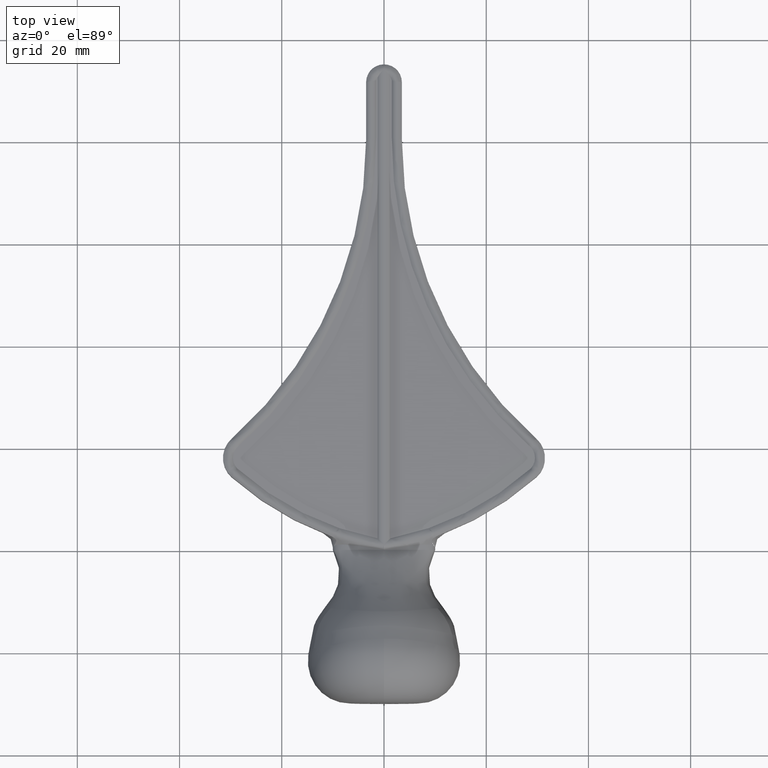
[diagram: clean part render]
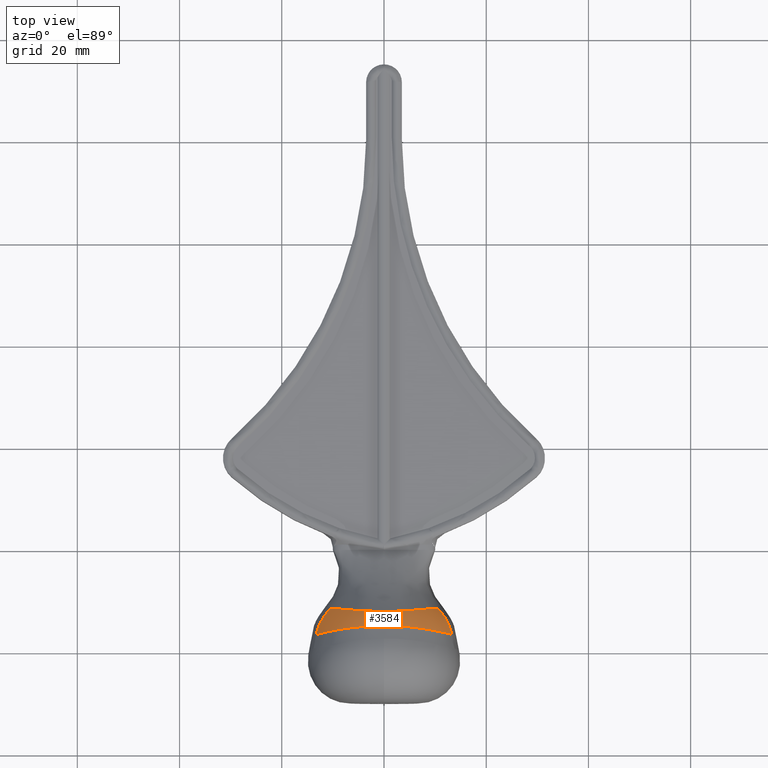
[diagram: same view with one face highlighted and labeled with its STEP entity id]
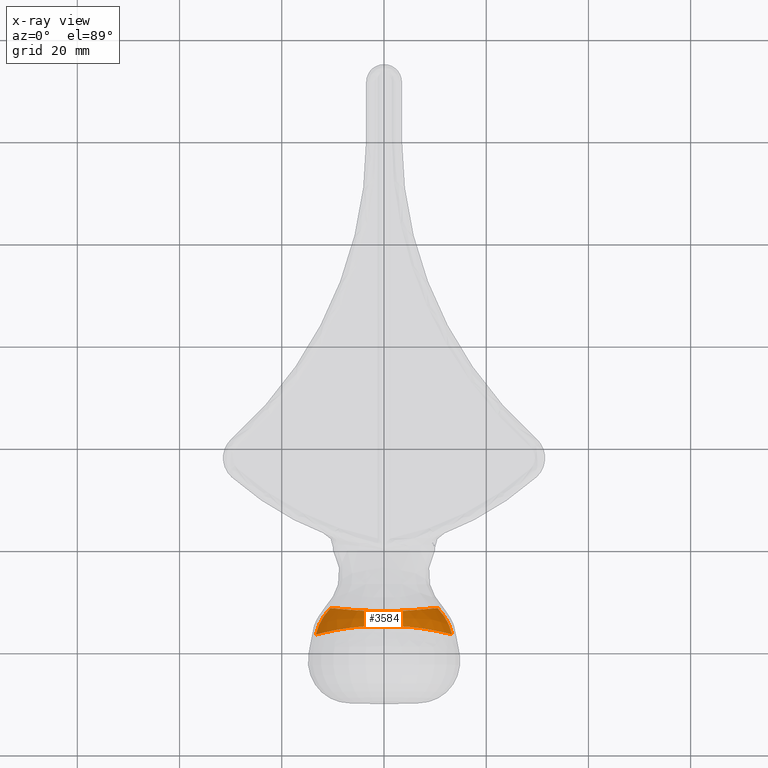
[diagram: x-ray of the same camera — body ghosted, the highlighted face saturated]
A machine part, top view. The second image highlights one B-rep face of the part: STEP entity #3584.
The next image is the same camera in x-ray: the body ghosted, the highlighted face saturated — about 0% of this face is hidden behind the body in this view.
In plain terms, the highlighted face is a freeform B-spline surface patch.
Its self-contained STEP definition (entity closure, byte-faithful):
#10 = CARTESIAN_POINT ( 'NONE',  ( 8.824125519055424860, -15.02148154929092883, 9.732410220815502555 ) ) ;
#21 = CARTESIAN_POINT ( 'NONE',  ( -1.265118813557378985, -12.16365338432753518, 10.70261947591743024 ) ) ;
#55 = CARTESIAN_POINT ( 'NONE',  ( 11.81248287066767233, -14.61493207378901893, 6.305769136463992730 ) ) ;
#72 = CARTESIAN_POINT ( 'NONE',  ( -2.684438737380169027, -15.06522955793446350, 12.36139442549095158 ) ) ;
#99 = CARTESIAN_POINT ( 'NONE',  ( 8.939145031473110237, -11.60983612437163792, 6.826925027535848400 ) ) ;
#113 = CARTESIAN_POINT ( 'NONE',  ( -1.701146384654378618, -12.15511942020265757, 10.65767593573265160 ) ) ;
#137 = CARTESIAN_POINT ( 'NONE',  ( 11.57123678229538299, -13.80158498780561160, 5.909088990730348101 ) ) ;
#138 = ORIENTED_EDGE ( 'NONE', *, *, #3094, .T. ) ;
#153 = CARTESIAN_POINT ( 'NONE',  ( -3.239960527878230856, -15.09792239818520088, 12.25377961948992755 ) ) ;
#182 = CARTESIAN_POINT ( 'NONE',  ( 12.74914962078130110, -14.70129836345234153, 4.606580305920640050 ) ) ;
#198 = CARTESIAN_POINT ( 'NONE',  ( 0.5236656965204712355, -13.98801651273573299, 12.07702233578911510 ) ) ;
#223 = CARTESIAN_POINT ( 'NONE',  ( 13.32582253926227089, -16.59854942122333910, 4.352172948701825916 ) ) ;
#281 = CARTESIAN_POINT ( 'NONE',  ( 1.135410154620598799, -12.58748646166945839, 11.09717466422200260 ) ) ;
#325 = CARTESIAN_POINT ( 'NONE',  ( 0.7462951338913951238, -13.51491509831633664, 11.76531464433298346 ) ) ;
#363 = CARTESIAN_POINT ( 'NONE',  ( 0.9870890721909389987, -13.51558246702402855, 11.75382298762103339 ) ) ;
#421 = CARTESIAN_POINT ( 'NONE',  ( -10.72711853489080625, -12.18442271871734306, 5.496689700690688518 ) ) ;
#446 = CARTESIAN_POINT ( 'NONE',  ( 2.501696882882866291, -12.56608371408337099, 10.91250140026796700 ) ) ;
#490 = CARTESIAN_POINT ( 'NONE',  ( 2.106475960124434277, -14.51549582802359062, 12.21583468068964784 ) ) ;
#508 = CARTESIAN_POINT ( 'NONE',  ( -11.81246179301561838, -14.62215587449737164, 6.307884028137589638 ) ) ;
#531 = CARTESIAN_POINT ( 'NONE',  ( 2.715356533992084653, -13.52731244450181336, 11.54671772977100197 ) ) ;
#550 = CARTESIAN_POINT ( 'NONE',  ( -9.974577460112687533, -15.17755092136311745, 8.812368706414128283 ) ) ;
#579 = CARTESIAN_POINT ( 'NONE',  ( 2.853742707489284491, -13.03157211028096540, 11.20302204092128129 ) ) ;
#592 = CARTESIAN_POINT ( 'NONE',  ( -9.791783589434414736, -12.24230222525254064, 6.758840558853693281 ) ) ;
#619 = CARTESIAN_POINT ( 'NONE',  ( 4.344958084007145338, -12.03561137989825092, 9.979984478364816169 ) ) ;
#634 = CARTESIAN_POINT ( 'NONE',  ( -8.691955668910955168, -13.67849519940155467, 9.015399626442839320 ) ) ;
#682 = CARTESIAN_POINT ( 'NONE',  ( -10.02839893286064843, -12.22777234352546039, 6.479558532255344616 ) ) ;
#691 = CARTESIAN_POINT ( 'NONE',  ( -11.62569038143496059, -16.23909680257552424, 7.366653199889019454 ) ) ;
#705 = CARTESIAN_POINT ( 'NONE',  ( 5.729543850476233935, -14.13169086795579332, 11.04431591591631623 ) ) ;
#722 = CARTESIAN_POINT ( 'NONE',  ( -10.55214520244951970, -15.25916752704235435, 8.282413238711708203 ) ) ;
#750 = CARTESIAN_POINT ( 'NONE',  ( 6.990724638657481727, -15.44775190505012041, 11.02673495915322732 ) ) ;
#768 = CARTESIAN_POINT ( 'NONE',  ( -9.059927101034251251, -15.75187814474844927, 9.818372771004211685 ) ) ;
#778 = CARTESIAN_POINT ( 'NONE',  ( 2.761095889289771677, -15.05545442563780689, 12.40038403135383049 ) ) ;
#786 = AXIS2_PLACEMENT_3D ( 'NONE', #5930, #4240, #12425 ) ;
#794 = CARTESIAN_POINT ( 'NONE',  ( 6.107935207945105915, -15.33964335825540637, 11.42794004167663502 ) ) ;
#809 = CARTESIAN_POINT ( 'NONE',  ( -6.486766451236691822, -14.77462621790281716, 11.01806676645111871 ) ) ;
#814 = CARTESIAN_POINT ( 'NONE',  ( -9.316463856898291596, -11.57468564652815601, 6.395703527915453712 ) ) ;
#818 = CARTESIAN_POINT ( 'NONE',  ( -8.575016581527012960, -15.67295192183776642, 10.14872752016085400 ) ) ;
#833 = CARTESIAN_POINT ( 'NONE',  ( 8.357669527969283862, -12.32235186393856097, 8.179698158686351306 ) ) ;
#851 = CARTESIAN_POINT ( 'NONE',  ( -6.779912526684418239, -13.00227141197952285, 9.803312297717862833 ) ) ;
#855 = CARTESIAN_POINT ( 'NONE',  ( 1.080269851437067885, -12.16981133828614858, 10.73164278328581567 ) ) ;
#879 = CARTESIAN_POINT ( 'NONE',  ( 10.30361548777313985, -13.74604447356640335, 7.550382556192165140 ) ) ;
#892 = CARTESIAN_POINT ( 'NONE',  ( -5.351306812893757758, -14.67898882603431865, 11.47525038511298767 ) ) ;
#923 = CARTESIAN_POINT ( 'NONE',  ( 7.627995431684825078, -13.63543170846410746, 9.711272399525590515 ) ) ;
#939 = CARTESIAN_POINT ( 'NONE',  ( -7.937309810194395965, -14.27422333847877134, 9.944234112235944778 ) ) ;
#976 = CARTESIAN_POINT ( 'NONE',  ( 9.849587045323637824, -12.97764466978657616, 7.458079267982801852 ) ) ;
#992 = CARTESIAN_POINT ( 'NONE',  ( -2.074690341072511046, -14.51288226196575692, 12.22641792775474379 ) ) ;
#1000 = EDGE_CURVE ( 'NONE', #1986, #2846, #4846, .T. ) ;
#1020 = CARTESIAN_POINT ( 'NONE',  ( 8.596234125941457194, -12.30853996766684766, 7.980624025087965201 ) ) ;
#1021 = CARTESIAN_POINT ( 'NONE',  ( 12.02657794774441591, -16.31738473234163322, 6.795615697443184722 ) ) ;
#1040 = CARTESIAN_POINT ( 'NONE',  ( -1.588932520611849197, -15.02548891466516068, 12.48843868897755982 ) ) ;
#1068 = CARTESIAN_POINT ( 'NONE',  ( 10.25954743004393777, -12.20619906091443774, 6.180834199393900441 ) ) ;
#1089 = CARTESIAN_POINT ( 'NONE',  ( -2.607776251226035402, -14.52971799969501454, 12.15285878453464719 ) ) ;
#1122 = CARTESIAN_POINT ( 'NONE',  ( 13.10685522083298693, -15.63822846484209883, 4.505604383142737035 ) ) ;
#1139 = CARTESIAN_POINT ( 'NONE',  ( -0.8290912424603799069, -12.17218734845241279, 10.74756301610220888 ) ) ;
#1172 = CARTESIAN_POINT ( 'NONE',  ( 11.02913242928761228, -14.54028606514108368, 7.335542478176505732 ) ) ;
#1188 = CARTESIAN_POINT ( 'NONE',  ( -1.326309387937877560, -12.58463492284249519, 11.07829723334714345 ) ) ;
#1214 = CARTESIAN_POINT ( 'NONE',  ( 11.94792535135744771, -16.30101437061977876, 6.899012945995806056 ) ) ;
#1255 = CARTESIAN_POINT ( 'NONE',  ( 11.18434204802392884, -12.14967043391935597, 4.681852160594754508 ) ) ;
#1317 = CARTESIAN_POINT ( 'NONE',  ( 0.2376032809492910625, -12.17639171876197146, 10.76691547397441262 ) ) ;
#1360 = CARTESIAN_POINT ( 'NONE',  ( 0.7190874312643265043, -13.04011112958904306, 11.46529454271716375 ) ) ;
#1408 = CARTESIAN_POINT ( 'NONE',  ( 1.355157007885916975, -15.01859055151932765, 12.51012390936449492 ) ) ;
#1424 = CARTESIAN_POINT ( 'NONE',  ( -13.10595395976679178, -15.64573375661658794, 4.510488180345182840 ) ) ;
#1454 = CARTESIAN_POINT ( 'NONE',  ( 2.041511798156793400, -12.57482922970334904, 10.98863262292469223 ) ) ;
#1473 = CARTESIAN_POINT ( 'NONE',  ( -11.78482812455928652, -12.96432239457410773, 4.700428473689413522 ) ) ;
#1548 = CARTESIAN_POINT ( 'NONE',  ( 3.277682572552036433, -15.10065215338143751, 12.24647038317744219 ) ) ;
#1567 = CARTESIAN_POINT ( 'NONE',  ( -10.84733403865568313, -12.97518093366634062, 6.266239412765568062 ) ) ;
#1590 = CARTESIAN_POINT ( 'NONE',  ( 2.966756342425527659, -13.53011806570840392, 11.49750591411611467 ) ) ;
#1608 = CARTESIAN_POINT ( 'NONE',  ( -10.83627223552878149, -15.30108015019317236, 7.980060524718932236 ) ) ;
#1651 = CARTESIAN_POINT ( 'NONE',  ( -9.590870842747786895, -12.98508263088566927, 7.713495497063899364 ) ) ;
#1677 = CARTESIAN_POINT ( 'NONE',  ( 6.788981010399011140, -14.80196308640249825, 10.88509214447227613 ) ) ;
#1698 = CARTESIAN_POINT ( 'NONE',  ( -9.555168246008179267, -12.25683210697962089, 7.038122585452042834 ) ) ;
#1728 = CARTESIAN_POINT ( 'NONE',  ( 5.784249777565841022, -13.00908440660218446, 10.27865377220110688 ) ) ;
#1745 = CARTESIAN_POINT ( 'NONE',  ( -10.47093580563438309, -14.49292336909202916, 7.939002008676301791 ) ) ;
#1773 = CARTESIAN_POINT ( 'NONE',  ( 5.506824941838614151, -13.57247807523188143, 10.77210249815568588 ) ) ;
#1792 = CARTESIAN_POINT ( 'NONE',  ( -8.837024141092877372, -12.29968688047310721, 7.764209342120266477 ) ) ;
#1806 = CARTESIAN_POINT ( 'NONE',  ( -9.139121962241411268, -15.76599780376254323, 9.760091355244751909 ) ) ;
#1840 = CARTESIAN_POINT ( 'NONE',  ( -8.220895992801015240, -14.95365768831525344, 10.10721828618304663 ) ) ;
#1843 = CARTESIAN_POINT ( 'NONE',  ( -3.657613415970685011, -12.07711742788042919, 10.22206684891114215 ) ) ;
#1850 = CARTESIAN_POINT ( 'NONE',  ( -2.795185913011829726, -15.06925498380143935, 12.34815394519684517 ) ) ;
#1867 = CARTESIAN_POINT ( 'NONE',  ( 6.561385875130920198, -13.60075321697369155, 10.29880681879155269 ) ) ;
#1883 = CARTESIAN_POINT ( 'NONE',  ( -6.537612008074713543, -11.86408231256271151, 8.864106749911121241 ) ) ;
#1885 = CARTESIAN_POINT ( 'NONE',  ( -1.049688008279818563, -12.16959341535863359, 10.73457151892605133 ) ) ;
#1894 = CARTESIAN_POINT ( 'NONE',  ( 10.20896169478448101, -15.95243135084311170, 8.886488151402465618 ) ) ;
#1909 = CARTESIAN_POINT ( 'NONE',  ( 8.501399152348341204, -11.65848815184178555, 7.282045249190436387 ) ) ;
#1926 = CARTESIAN_POINT ( 'NONE',  ( -8.458154259133127795, -15.65783788759634021, 10.20390731855346012 ) ) ;
#1950 = CARTESIAN_POINT ( 'NONE',  ( 8.720800384998897314, -11.63426638613731257, 7.062561368285709129 ) ) ;
#1970 = CARTESIAN_POINT ( 'NONE',  ( -8.153470163148474725, -13.65620222595029531, 9.392538450985805198 ) ) ;
#1975 = CARTESIAN_POINT ( 'NONE',  ( -5.626492393478971010, -11.94386281599613220, 9.407051876982896133 ) ) ;
#1986 = VERTEX_POINT ( 'NONE', #12012 ) ;
#2004 = CARTESIAN_POINT ( 'NONE',  ( 11.12900041810087259, -16.13256584981760966, 7.928884772920202550 ) ) ;
#2021 = CARTESIAN_POINT ( 'NONE',  ( -7.263549048042503564, -15.48127573131186452, 10.90338165449429297 ) ) ;
#2052 = CARTESIAN_POINT ( 'NONE',  ( 7.407993342288532901, -12.37591621183108259, 8.911427934825667307 ) ) ;
#2069 = CARTESIAN_POINT ( 'NONE',  ( -3.795482318376292241, -15.13061523843594003, 12.14616481348890353 ) ) ;
#2100 = CARTESIAN_POINT ( 'NONE',  ( 12.67593173712456966, -15.57319824514818940, 5.432351965262465221 ) ) ;
#2101 = CARTESIAN_POINT ( 'NONE',  ( 13.06940915006319770, -16.54262931501438061, 5.005950385435643746 ) ) ;
#2150 = CARTESIAN_POINT ( 'NONE',  ( 10.35073098250990675, -12.97311317745633197, 6.889488068281596433 ) ) ;
#2168 = CARTESIAN_POINT ( 'NONE',  ( -2.431256829486609483, -13.52367566559779100, 11.60140109888382476 ) ) ;
#2197 = CARTESIAN_POINT ( 'NONE',  ( 12.20948698438980173, -16.35613684628463815, 6.530648720839693055 ) ) ;
#2212 = CARTESIAN_POINT ( 'NONE',  ( -1.543230229323132807, -14.50176121373984195, 12.27460670950466159 ) ) ;
#2243 = CARTESIAN_POINT ( 'NONE',  ( 10.59959283283632558, -12.97073804108205408, 6.592114471478160098 ) ) ;
#2258 = CARTESIAN_POINT ( 'NONE',  ( -0.9785832730103976029, -13.98999348504645468, 12.06301302891950833 ) ) ;
#2302 = CARTESIAN_POINT ( 'NONE',  ( 0.2765539757890253525, -13.98713783805432342, 12.08299651889177895 ) ) ;
#2387 = CARTESIAN_POINT ( 'NONE',  ( 1.056958501306297871, -14.49280553225340817, 12.31321502163381254 ) ) ;
#2425 = CARTESIAN_POINT ( 'NONE',  ( 1.360566269056418198, -12.58483365474209847, 11.07455919050639359 ) ) ;
#2444 = CARTESIAN_POINT ( 'NONE',  ( -12.92169651402661223, -16.51830030092489210, 5.293152076082730417 ) ) ;
#2452 = ORIENTED_EDGE ( 'NONE', *, *, #9763, .T. ) ;
#2485 = CARTESIAN_POINT ( 'NONE',  ( -11.32726916754884350, -12.96996428123176770, 5.546020477616111499 ) ) ;
#2518 = CARTESIAN_POINT ( 'NONE',  ( 3.183953411985292803, -14.55490986208828375, 12.04294864261898113 ) ) ;
#2532 = CARTESIAN_POINT ( 'NONE',  ( -11.56157536545773823, -12.96706756847502895, 5.150328916752437536 ) ) ;
#2559 = CARTESIAN_POINT ( 'NONE',  ( 3.835424835089856099, -15.13398440406620793, 12.13723697918031164 ) ) ;
#2602 = CARTESIAN_POINT ( 'NONE',  ( 2.719574927009923648, -15.06943190543355726, 12.34818063486834916 ) ) ;
#2616 = CARTESIAN_POINT ( 'NONE',  ( -12.90234117998654639, -15.61541214787894027, 4.991311824977942457 ) ) ;
#2649 = CARTESIAN_POINT ( 'NONE',  ( 3.336269889755688389, -13.02862460661906496, 11.10694637208257696 ) ) ;
#2666 = CARTESIAN_POINT ( 'NONE',  ( -9.335429271734737355, -12.98672394486619019, 7.965059504182813832 ) ) ;
#2699 = CARTESIAN_POINT ( 'NONE',  ( 7.114914934575163663, -14.21510907640051435, 10.40600871750009482 ) ) ;
#2712 = CARTESIAN_POINT ( 'NONE',  ( -7.850124485722347778, -11.73463420624946352, 7.886557554250151370 ) ) ;
#2739 = CARTESIAN_POINT ( 'NONE',  ( 6.555358892761634415, -14.17933813028866830, 10.68329869471522287 ) ) ;
#2761 = CARTESIAN_POINT ( 'NONE',  ( -11.39897183175346207, -16.19299273889441793, 7.628634279202110235 ) ) ;
#2771 = CARTESIAN_POINT ( 'NONE',  ( -4.479927415688289116, -15.18393241070119792, 11.96644235267180356 ) ) ;
#2789 = CARTESIAN_POINT ( 'NONE',  ( 7.370253401585242337, -14.85978346309117448, 10.59290292640067399 ) ) ;
#2811 = CARTESIAN_POINT ( 'NONE',  ( -9.076213384565557263, -12.28552044830670908, 7.529065713595661791 ) ) ;
#2815 = CARTESIAN_POINT ( 'NONE',  ( 8.562342351914127292, -15.67167397763793346, 10.14151581726056328 ) ) ;
#2829 = CARTESIAN_POINT ( 'NONE',  ( 4.963963914640737052, -15.22729075593807124, 11.82035762661372758 ) ) ;
#2846 = VERTEX_POINT ( 'NONE', #13231 ) ;
#2850 = CARTESIAN_POINT ( 'NONE',  ( -10.53935798043763405, -16.02140992446856771, 8.559624911861902774 ) ) ;
#2860 = CARTESIAN_POINT ( 'NONE',  ( 9.132089621634532861, -15.76399223147166850, 9.747385230438327497 ) ) ;
#2877 = CARTESIAN_POINT ( 'NONE',  ( 5.191185037971918881, -14.10515780205771286, 11.23941382363899422 ) ) ;
#2893 = CARTESIAN_POINT ( 'NONE',  ( -5.219193370804651622, -11.97424446369692674, 9.596989450102984875 ) ) ;
#2920 = CARTESIAN_POINT ( 'NONE',  ( 6.537821167332985794, -11.86059902447829195, 8.863294306531809497 ) ) ;
#2932 = CARTESIAN_POINT ( 'NONE',  ( -4.095479427615940082, -12.52186488060632286, 10.50744851784908995 ) ) ;
#2938 = CARTESIAN_POINT ( 'NONE',  ( 7.005475964849205539, -11.81667214355791451, 8.561517742983317802 ) ) ;
#2944 = CARTESIAN_POINT ( 'NONE',  ( -3.474744838498081911, -15.10811956803732770, 12.22170690417858907 ) ) ;
#2964 = CARTESIAN_POINT ( 'NONE',  ( 8.314425115616256079, -12.98923355843220229, 8.829083374705133380 ) ) ;
#2980 = CARTESIAN_POINT ( 'NONE',  ( -6.815932040327081332, -14.19464214759768694, 10.56933247733985048 ) ) ;
#3005 = CARTESIAN_POINT ( 'NONE',  ( 11.68636371832509546, -16.24589189495491937, 7.267377171151919946 ) ) ;
#3023 = CARTESIAN_POINT ( 'NONE',  ( -6.978865633003334956, -11.82366006276294534, 8.580751454675681344 ) ) ;
#3049 = CARTESIAN_POINT ( 'NONE',  ( 7.047786231405004820, -12.99875028865256432, 9.642126830518353842 ) ) ;
#3068 = CARTESIAN_POINT ( 'NONE',  ( -4.779856736038677667, -12.00727366138787566, 9.805980806837403918 ) ) ;
#3094 = EDGE_CURVE ( 'NONE', #1986, #12632, #6850, .T. ) ;
#3101 = CARTESIAN_POINT ( 'NONE',  ( 9.077488924688365657, -14.36206326840125058, 9.195796011686345750 ) ) ;
#3115 = CARTESIAN_POINT ( 'NONE',  ( -1.042021148665744690, -15.00966455819806278, 12.53872431195614112 ) ) ;
#3167 = CARTESIAN_POINT ( 'NONE',  ( 0.02645609250530777529, -12.59268766448648513, 11.14266574925929021 ) ) ;
#3199 = CARTESIAN_POINT ( 'NONE',  ( 9.552981141014342370, -12.25052857035857556, 7.040286065657443970 ) ) ;
#3216 = CARTESIAN_POINT ( 'NONE',  ( -0.8691473534728834105, -12.58998771388620597, 11.12300494907022497 ) ) ;
#3244 = CARTESIAN_POINT ( 'NONE',  ( 11.93868640903913736, -15.46044999399014586, 6.633622473947924369 ) ) ;
#3257 = CARTESIAN_POINT ( 'NONE',  ( 0.02742922065340637136, -13.98706208977309551, 12.08347413804680848 ) ) ;
#3290 = CARTESIAN_POINT ( 'NONE',  ( 12.92164422282440661, -16.51024686056905466, 5.289243504489392400 ) ) ;
#3309 = CARTESIAN_POINT ( 'NONE',  ( 0.5055011955918518041, -13.51424772960864473, 11.77680630104493353 ) ) ;
#3336 = CARTESIAN_POINT ( 'NONE',  ( 10.72561738753337757, -12.17710205349214014, 5.499667648684828158 ) ) ;
#3353 = CARTESIAN_POINT ( 'NONE',  ( 0.6898956580921403736, -12.59076781535474154, 11.12517520801037030 ) ) ;
#3394 = CARTESIAN_POINT ( 'NONE',  ( 1.084116738681549785, -12.16797204292169710, 10.72157534003537194 ) ) ;
#3438 = CARTESIAN_POINT ( 'NONE',  ( 1.419267250317495899, -13.03840405628421806, 11.41442291995588398 ) ) ;
#3480 = CARTESIAN_POINT ( 'NONE',  ( 1.316969997630994538, -14.49702609658249841, 12.29526735542694382 ) ) ;
#3516 = CARTESIAN_POINT ( 'NONE',  ( 2.642066481153142465, -14.53286438860298624, 12.14016650077576642 ) ) ;
#3563 = CARTESIAN_POINT ( 'NONE',  ( 2.998811441283125490, -15.08398602803905142, 12.30108708517600569 ) ) ;
#3584 = ADVANCED_FACE ( 'NONE', ( #4299 ), #10027, .T. ) ;
#3607 = CARTESIAN_POINT ( 'NONE',  ( 3.469555959292412783, -13.53572930812158681, 11.39908228280633828 ) ) ;
#3646 = CARTESIAN_POINT ( 'NONE',  ( 3.602842028829137622, -14.04283400962410866, 11.69121819353009961 ) ) ;
#3669 = CARTESIAN_POINT ( 'NONE',  ( -12.43469758861100516, -15.54397770525978295, 5.847067444484780552 ) ) ;
#3695 = CARTESIAN_POINT ( 'NONE',  ( 1.585722383492237375, -12.58218084781474033, 11.05194371679078280 ) ) ;
#3711 = CARTESIAN_POINT ( 'NONE',  ( -11.93607971099182841, -15.46722421076768050, 6.640276105767970449 ) ) ;
#3742 = CARTESIAN_POINT ( 'NONE',  ( 6.696461495086689197, -15.41171572278521573, 11.16046998666102930 ) ) ;
#3757 = CARTESIAN_POINT ( 'NONE',  ( -9.659225686624830942, -15.85583140536611246, 9.368433450361232318 ) ) ;
#3787 = CARTESIAN_POINT ( 'NONE',  ( 7.394879273902999373, -14.23359877382000782, 10.26124466315589423 ) ) ;
#3805 = CARTESIAN_POINT ( 'NONE',  ( -10.26300233892803782, -12.21315769365134329, 6.176035951043951755 ) ) ;
#3840 = CARTESIAN_POINT ( 'NONE',  ( 6.032168494782837342, -13.58627005805661447, 10.54114577032501465 ) ) ;
#3855 = CARTESIAN_POINT ( 'NONE',  ( -11.94163354135121047, -16.30692475323465729, 6.911191861912979739 ) ) ;
#3885 = CARTESIAN_POINT ( 'NONE',  ( 5.219269772132198781, -11.97262941051493712, 9.596445247734063599 ) ) ;
#3905 = CARTESIAN_POINT ( 'NONE',  ( -6.276997070943312274, -13.00592621235553459, 10.06046804096918379 ) ) ;
#3908 = CARTESIAN_POINT ( 'NONE',  ( -6.991301589765922309, -11.82223481695304201, 8.572381844968015585 ) ) ;
#3931 = CARTESIAN_POINT ( 'NONE',  ( 4.482779639688073914, -13.55210113921263648, 11.11733146687397245 ) ) ;
#3950 = CARTESIAN_POINT ( 'NONE',  ( -5.497909443306766342, -13.57215551070713921, 10.77497127187857551 ) ) ;
#3962 = CARTESIAN_POINT ( 'NONE',  ( -12.03391951832243123, -16.32602562376549216, 6.814557208749986827 ) ) ;
#3977 = CARTESIAN_POINT ( 'NONE',  ( 9.501133420344709535, -13.71021808817870102, 8.334264675307995418 ) ) ;
#3992 = CARTESIAN_POINT ( 'NONE',  ( -6.450976898168557128, -12.42699383375914657, 9.501595239215909316 ) ) ;
#3996 = CARTESIAN_POINT ( 'NONE',  ( 2.664613616147953667, -12.12442935371564978, 10.48715624813575431 ) ) ;
#4024 = CARTESIAN_POINT ( 'NONE',  ( 9.920971544300806855, -14.43680956138991611, 8.475692983159783367 ) ) ;
#4039 = CARTESIAN_POINT ( 'NONE',  ( -4.976295548750464981, -13.56062120797919235, 10.96588533173489388 ) ) ;
#4042 = CARTESIAN_POINT ( 'NONE',  ( 10.48465662428086098, -11.44302054887363518, 4.612638876826554934 ) ) ;
#4064 = CARTESIAN_POINT ( 'NONE',  ( 8.695957020152311756, -13.67564841341672732, 9.012439693195739565 ) ) ;
#4082 = CARTESIAN_POINT ( 'NONE',  ( -7.856381417232003450, -15.56379763044423470, 10.58944186610270677 ) ) ;
#4087 = CARTESIAN_POINT ( 'NONE',  ( 6.566905491787133897, -11.85917038855694727, 8.858737349912527037 ) ) ;
#4120 = CARTESIAN_POINT ( 'NONE',  ( 8.483371691765375644, -15.66007695878587214, 10.18742457376913535 ) ) ;
#4136 = CARTESIAN_POINT ( 'NONE',  ( -0.4872293918400080748, -14.48539638749075387, 12.34486347477120560 ) ) ;
#4164 = CARTESIAN_POINT ( 'NONE',  ( 8.161396513546728571, -13.65428577539774224, 9.387111224705167345 ) ) ;
#4183 = CARTESIAN_POINT ( 'NONE',  ( -3.790071783667791294, -13.02487177721429035, 10.99341845906902293 ) ) ;
#4208 = CARTESIAN_POINT ( 'NONE',  ( 10.03787051315536516, -11.48869179352684888, 5.388814144978677056 ) ) ;
#4226 = CARTESIAN_POINT ( 'NONE',  ( 0.2927608756257463751, -15.00252566196732928, 12.56029904760296034 ) ) ;
#4240 = DIRECTION ( 'NONE',  ( -0.3125617299870133148, -0.2189481515863030692, 0.9243196805567146512 ) ) ;
#4257 = CARTESIAN_POINT ( 'NONE',  ( 10.26109016863250467, -11.46513742120095358, 5.033476335437599758 ) ) ;
#4274 = CARTESIAN_POINT ( 'NONE',  ( -2.933190515840883528, -13.52918487586357621, 11.50419265333887253 ) ) ;
#4299 = FACE_OUTER_BOUND ( 'NONE', #4542, .T. ) ;
#4315 = CARTESIAN_POINT ( 'NONE',  ( -3.303813964372188661, -13.02829911043589028, 11.11462550885831391 ) ) ;
#4346 = CARTESIAN_POINT ( 'NONE',  ( 10.02491726633326685, -12.22102620006710438, 6.483802977356507569 ) ) ;
#4360 = CARTESIAN_POINT ( 'NONE',  ( 0.4873366946632324281, -13.04047894648155648, 11.47659026630075019 ) ) ;
#4402 = CARTESIAN_POINT ( 'NONE',  ( 1.023339976516457028, -13.99142162135152745, 12.05364715610849125 ) ) ;
#4536 = CARTESIAN_POINT ( 'NONE',  ( -10.26048414706721168, -11.47267999333610788, 5.031996818501916380 ) ) ;
#4542 = EDGE_LOOP ( 'NONE', ( #2452, #12478, #138, #6629 ) ) ;
#4561 = CARTESIAN_POINT ( 'NONE',  ( 3.973452243057314259, -13.54291514412024355, 11.27413614156703581 ) ) ;
#4577 = CARTESIAN_POINT ( 'NONE',  ( -12.53431335739589159, -14.68974634813172564, 5.085334312119411670 ) ) ;
#4608 = CARTESIAN_POINT ( 'NONE',  ( 1.654434510020143856, -13.03763650574522082, 11.39167459639557123 ) ) ;
#4627 = CARTESIAN_POINT ( 'NONE',  ( -12.67624492389426827, -15.58103133839695076, 5.434814566900834087 ) ) ;
#4651 = CARTESIAN_POINT ( 'NONE',  ( 2.297333451510660929, -14.01020885660102699, 11.92256959756822532 ) ) ;
#4668 = CARTESIAN_POINT ( 'NONE',  ( -10.03967255056201680, -11.49597687976403293, 5.384680024631034456 ) ) ;
#4697 = CARTESIAN_POINT ( 'NONE',  ( 2.214142974709401912, -13.52286749798544108, 11.62522538535603367 ) ) ;
#4710 = CARTESIAN_POINT ( 'NONE',  ( -9.846312413760834659, -12.98344131690514658, 7.461931489944984897 ) ) ;
#4740 = CARTESIAN_POINT ( 'NONE',  ( 3.039995860948998541, -12.10774052885673591, 10.39386796182925643 ) ) ;
#4754 = CARTESIAN_POINT ( 'NONE',  ( -9.631804307225413808, -14.41504911304799741, 8.723173575327024309 ) ) ;
#4781 = CARTESIAN_POINT ( 'NONE',  ( 4.306056286319660309, -13.02125728582014652, 10.83345891520158233 ) ) ;
#4798 = CARTESIAN_POINT ( 'NONE',  ( -9.069665117852613534, -14.36435366117009060, 9.201864096534297488 ) ) ;
#4827 = CARTESIAN_POINT ( 'NONE',  ( 7.094809303298200476, -13.61718109672460564, 10.02248966621207060 ) ) ;
#4842 = CARTESIAN_POINT ( 'NONE',  ( -8.943963671866850262, -11.61613391733673417, 6.821907043129426640 ) ) ;
#4846 = B_SPLINE_CURVE_WITH_KNOTS ( 'NONE', 3,
 ( #13182, #7060, #5025, #814, #12319, #13220, #7153, #3908, #10110, #1975, #5114, #4979, #1843, #10152, #8102, #1885, #10242, #13268, #855, #11233, #3996, #7197, #11277, #9214, #9123, #4087, #2938, #7014, #6145, #6059, #9083, #4042 ),
 .UNSPECIFIED., .F., .F.,
 ( 4, 2, 2, 2, 2, 2, 2, 2, 2, 2, 2, 2, 2, 2, 2, 4 ),
 ( 0.000000000000000000, 0.001594020384221811297, 0.003188040768443622594, 0.004782061152665433891, 0.006376081536887245188, 0.007970101921109057352, 0.009564122305330867782, 0.01115814268955267995, 0.01275216307377449038, 0.01434618345799630254, 0.01594020384221811470, 0.01753422422643992687, 0.01912824461066173556, 0.02072226499488354773, 0.02231628537910535989, 0.02550432614754898769 ),
 .UNSPECIFIED. ) ;
#4867 = CARTESIAN_POINT ( 'NONE',  ( 5.040349934917032648, -12.48776426107048287, 10.17552240950861631 ) ) ;
#4885 = CARTESIAN_POINT ( 'NONE',  ( -10.82964345623363123, -16.07818731150969782, 8.267381091198474863 ) ) ;
#4917 = CARTESIAN_POINT ( 'NONE',  ( 6.280087211999833663, -14.16345570951104449, 10.80363776844892065 ) ) ;
#4935 = CARTESIAN_POINT ( 'NONE',  ( -6.266891490590722036, -14.16271627806379918, 10.80870863608845589 ) ) ;
#4963 = CARTESIAN_POINT ( 'NONE',  ( 6.287821155014513330, -13.00488705496636044, 10.04684086573880819 ) ) ;
#4976 = CARTESIAN_POINT ( 'NONE',  ( -4.565550308366685073, -12.50636090050084448, 10.35685869210002252 ) ) ;
#4979 = CARTESIAN_POINT ( 'NONE',  ( -4.166595500159715471, -12.04762742990654267, 10.05005657155180643 ) ) ;
#5006 = CARTESIAN_POINT ( 'NONE',  ( 10.84867726859845583, -15.29738539576800527, 7.964958498043321455 ) ) ;
#5022 = CARTESIAN_POINT ( 'NONE',  ( -7.075544727583101157, -13.61694496667914223, 10.04554573041896326 ) ) ;
#5025 = CARTESIAN_POINT ( 'NONE',  ( -9.944496674007265113, -11.50599123384918876, 5.541184220482322509 ) ) ;
#5052 = CARTESIAN_POINT ( 'NONE',  ( 7.880540332024938976, -12.34997565648198936, 8.577846425883123516 ) ) ;
#5071 = CARTESIAN_POINT ( 'NONE',  ( -7.414738980970278170, -11.78030137144207146, 8.260575608706426820 ) ) ;
#5096 = CARTESIAN_POINT ( 'NONE',  ( 8.061574269818542859, -11.70671654663024697, 7.704485985743341203 ) ) ;
#5110 = CARTESIAN_POINT ( 'NONE',  ( -6.677270923847409279, -15.40931222283235513, 11.16868639739914215 ) ) ;
#5114 = CARTESIAN_POINT ( 'NONE',  ( -5.150431848651768618, -11.98100182953187520, 9.642492529398996481 ) ) ;
#5139 = CARTESIAN_POINT ( 'NONE',  ( 6.974011231964539981, -11.81998127447536007, 8.583122346018619453 ) ) ;
#5152 = CARTESIAN_POINT ( 'NONE',  ( -3.011832608824725366, -12.10855764297999571, 10.40143752028695623 ) ) ;
#5179 = CARTESIAN_POINT ( 'NONE',  ( 10.27552763388666257, -15.21480369109934294, 8.546317212968824961 ) ) ;
#5196 = CARTESIAN_POINT ( 'NONE',  ( -1.438670023164649647, -13.51732482762364462, 11.71720750589905613 ) ) ;
#5249 = CARTESIAN_POINT ( 'NONE',  ( -0.4168911812047573773, -12.59265284398702534, 11.14361895759439847 ) ) ;
#5274 = CARTESIAN_POINT ( 'NONE',  ( 12.05688791706516128, -14.63782369500202662, 5.909910956963401851 ) ) ;
#5293 = CARTESIAN_POINT ( 'NONE',  ( -2.522960082761806611, -14.01327889961510920, 11.89825051166947212 ) ) ;
#5323 = CARTESIAN_POINT ( 'NONE',  ( 11.55652778971175820, -14.59053521788596974, 6.667028281871358431 ) ) ;
#5339 = CARTESIAN_POINT ( 'NONE',  ( -2.007217952535770955, -14.00322601941644329, 11.96956090418720642 ) ) ;
#5370 = CARTESIAN_POINT ( 'NONE',  ( 12.90221556047368878, -15.60758361137931516, 4.988977096332745553 ) ) ;
#5384 = CARTESIAN_POINT ( 'NONE',  ( 1.895446130334211388, -15.03469237883216181, 12.45932451840329058 ) ) ;
#5418 = CARTESIAN_POINT ( 'NONE',  ( 11.32878927927449730, -13.79153107692177116, 6.287295296063880379 ) ) ;
#5556 = CARTESIAN_POINT ( 'NONE',  ( -13.32550160503648762, -16.60622962604524133, 4.356702465373408550 ) ) ;
#5583 = CARTESIAN_POINT ( 'NONE',  ( 2.168043258026901565, -15.04480334428429344, 12.42723882763125154 ) ) ;
#5629 = CARTESIAN_POINT ( 'NONE',  ( 2.913203318084672588, -14.54313445082601142, 12.09512348665042403 ) ) ;
#5647 = CARTESIAN_POINT ( 'NONE',  ( -11.81458082680136279, -13.81916879719464575, 5.530550793597266868 ) ) ;
#5716 = CARTESIAN_POINT ( 'NONE',  ( 1.782439077984546927, -14.00073866758290997, 11.98899457567807580 ) ) ;
#5730 = CARTESIAN_POINT ( 'NONE',  ( -9.162894569125498379, -11.59189189097542538, 6.562130044372964655 ) ) ;
#5760 = CARTESIAN_POINT ( 'NONE',  ( 1.891505424009020109, -13.03667306684396898, 11.36300854092256607 ) ) ;
#5777 = CARTESIAN_POINT ( 'NONE',  ( -8.824787455710627171, -12.98968857338508442, 8.405645844226100394 ) ) ;
#5797 = AXIS2_PLACEMENT_3D ( 'NONE', #11074, #9145, #11209 ) ;
#5809 = CARTESIAN_POINT ( 'NONE',  ( 4.780268060186970480, -12.00619038030743724, 9.805329487575125569 ) ) ;
#5825 = CARTESIAN_POINT ( 'NONE',  ( -10.56283182066684390, -13.76380748888559324, 7.265530365167403026 ) ) ;
#5852 = CARTESIAN_POINT ( 'NONE',  ( 4.793029034665749144, -13.01741646655234597, 10.68163976072282395 ) ) ;
#5867 = CARTESIAN_POINT ( 'NONE',  ( -10.74884967403441927, -14.51932699023666196, 7.653832741179859234 ) ) ;
#5901 = CARTESIAN_POINT ( 'NONE',  ( 6.100839719052940424, -11.90045506579454226, 9.133918051077799305 ) ) ;
#5919 = CARTESIAN_POINT ( 'NONE',  ( -11.12039926860804329, -15.34299277334398859, 7.677707810726156268 ) ) ;
#5930 = CARTESIAN_POINT ( 'NONE',  ( 4.084314520279987981, -18.14782413183767673, 0.8601423924009896638 ) ) ;
#5946 = CIRCLE ( 'NONE', #786, 10.00000000000000000 ) ;
#5951 = CARTESIAN_POINT ( 'NONE',  ( 7.289499785194631265, -15.48677350045928236, 10.87899672253505479 ) ) ;
#5968 = CARTESIAN_POINT ( 'NONE',  ( -5.717850940854362740, -14.13079040852991319, 11.04808479483706130 ) ) ;
#5979 = CARTESIAN_POINT ( 'NONE',  ( 5.460671934541631245, -15.27070343791777240, 11.67288687257600088 ) ) ;
#6008 = CARTESIAN_POINT ( 'NONE',  ( -4.779854212410237224, -13.01745806716548337, 10.68628422630294672 ) ) ;
#6018 = CARTESIAN_POINT ( 'NONE',  ( -4.812620051648732300, -15.21212592333637836, 11.87037818257354793 ) ) ;
#6040 = CARTESIAN_POINT ( 'NONE',  ( 9.771426124153922643, -13.72220488335557143, 8.087100050766409254 ) ) ;
#6056 = CARTESIAN_POINT ( 'NONE',  ( -4.233483400476105274, -14.60528834030241185, 11.81499967009153629 ) ) ;
#6059 = CARTESIAN_POINT ( 'NONE',  ( 9.352769333222040515, -11.56414929653202250, 6.408661886492202697 ) ) ;
#6080 = CARTESIAN_POINT ( 'NONE',  ( 9.076419967577043835, -12.27972173084210183, 7.528679948683215883 ) ) ;
#6098 = CARTESIAN_POINT ( 'NONE',  ( -6.090992799652314993, -15.33734871435284575, 11.43399114030399133 ) ) ;
#6124 = CARTESIAN_POINT ( 'NONE',  ( 10.56570586648849464, -15.25608646471320995, 8.267219161479248513 ) ) ;
#6141 = CARTESIAN_POINT ( 'NONE',  ( -5.916824648965694600, -14.72301320842732153, 11.26919405393173257 ) ) ;
#6145 = CARTESIAN_POINT ( 'NONE',  ( 8.240404595999118342, -11.68743878717266504, 7.551756509426694741 ) ) ;
#6166 = CARTESIAN_POINT ( 'NONE',  ( 10.26021329395470616, -15.96441395361303250, 8.814361499292177271 ) ) ;
#6181 = CARTESIAN_POINT ( 'NONE',  ( -1.934412700897425452, -13.51982249300290206, 11.67135164549669391 ) ) ;
#6215 = CARTESIAN_POINT ( 'NONE',  ( 8.515438119549781248, -14.31569318676302416, 9.592361857553798998 ) ) ;
#6216 = CARTESIAN_POINT ( 'NONE',  ( 11.39679144671239897, -16.18630666115100425, 7.624446094242835592 ) ) ;
#6234 = CARTESIAN_POINT ( 'NONE',  ( -2.135843892557954149, -15.04131327113226035, 12.43815306599897674 ) ) ;
#6268 = CARTESIAN_POINT ( 'NONE',  ( 11.32607560716988893, -12.96256248116387511, 5.547712593330822450 ) ) ;
#6284 = CARTESIAN_POINT ( 'NONE',  ( -3.147486805995872050, -14.55282145895464119, 12.04996109903499857 ) ) ;
#6315 = CARTESIAN_POINT ( 'NONE',  ( 11.40742156232797910, -15.37997866765337740, 7.337633631713893045 ) ) ;
#6332 = CARTESIAN_POINT ( 'NONE',  ( -1.861607449259080171, -13.03641896658935906, 11.37314238680618139 ) ) ;
#6376 = CARTESIAN_POINT ( 'NONE',  ( 0.02683714322300902178, -13.04060368241958834, 11.48285147960510599 ) ) ;
#6400 = CARTESIAN_POINT ( 'NONE',  ( 9.788949203673805499, -12.23577738521283997, 6.762044521506975769 ) ) ;
#6447 = CARTESIAN_POINT ( 'NONE',  ( 12.53431187931860791, -14.68207932405874416, 5.083819782489885419 ) ) ;
#6458 = CARTESIAN_POINT ( 'NONE',  ( 1.625301569110064293, -15.02664146517574473, 12.48472421388389186 ) ) ;
#6500 = CARTESIAN_POINT ( 'NONE',  ( 1.184099990614848164, -13.03917160682321708, 11.43717124351619852 ) ) ;
#6541 = CARTESIAN_POINT ( 'NONE',  ( 0.4472719854924857574, -12.17535806904654017, 10.76110616942566445 ) ) ;
#6583 = CARTESIAN_POINT ( 'NONE',  ( 0.2673175829007820581, -13.51388854880452683, 11.78268608823216645 ) ) ;
#6599 = CARTESIAN_POINT ( 'NONE',  ( -12.74758007213891453, -14.70870313723904133, 4.611779550961720986 ) ) ;
#6626 = CARTESIAN_POINT ( 'NONE',  ( 3.474788159280791877, -12.08638750818119689, 10.27433687276674767 ) ) ;
#6629 = ORIENTED_EDGE ( 'NONE', *, *, #9748, .F. ) ;
#6676 = CARTESIAN_POINT ( 'NONE',  ( 2.374271220638788371, -14.52418010831328843, 12.17800059073270802 ) ) ;
#6684 = B_SPLINE_CURVE_WITH_KNOTS ( 'NONE', 3,
 ( #13371, #2101, #9290, #9382, #1021, #10421, #6216, #9335, #1894, #8950, #2860, #2815, #13089, #9129, #11010, #5979, #7065, #778, #10025, #8022, #8067, #13187, #11106, #1850, #2944, #2771, #6018, #9088, #7023, #12243, #12200, #818, #1806, #6928, #8995, #691, #3962, #10117, #7973, #6977, #9042, #10073 ),
 .UNSPECIFIED., .F., .F.,
 ( 4, 2, 2, 2, 2, 2, 2, 2, 2, 2, 2, 2, 2, 2, 2, 2, 2, 2, 2, 2, 4 ),
 ( 0.000000000000000000, 0.002083357210767015043, 0.003125035816150522998, 0.004166714421534030953, 0.006250071632301048598, 0.007291750237684554818, 0.008333428843068061906, 0.01041678605383506914, 0.01250014326460207638, 0.01666685768613608912, 0.01770853629151959360, 0.01875021489690309462, 0.02083357210767010359, 0.02187525071305361155, 0.02291692931843711256, 0.02500028652920412153, 0.02708364373997112703, 0.02916700095073813601, 0.03125035816150514151, 0.03229203676688864599, 0.03333371537227215048 ),
 .UNSPECIFIED. ) ;
#6721 = CARTESIAN_POINT ( 'NONE',  ( 1.718436794002345502, -13.51918758666406539, 11.69033458603682263 ) ) ;
#6739 = CARTESIAN_POINT ( 'NONE',  ( -12.45654426451784857, -16.41715938782728657, 6.143320662053991299 ) ) ;
#6783 = CARTESIAN_POINT ( 'NONE',  ( -8.598691857178904385, -12.31348968748948458, 7.978566648295567276 ) ) ;
#6822 = CARTESIAN_POINT ( 'NONE',  ( -11.28973019901786934, -14.57165308690307448, 7.007009918928336134 ) ) ;
#6850 = CIRCLE ( 'NONE', #5797, 9.999999999999998224 ) ;
#6856 = CARTESIAN_POINT ( 'NONE',  ( 4.659502993056488407, -14.08294499260512644, 11.40120401854636434 ) ) ;
#6871 = CARTESIAN_POINT ( 'NONE',  ( -8.067817238098383470, -11.71180062365315777, 7.699548527022014532 ) ) ;
#6899 = CARTESIAN_POINT ( 'NONE',  ( 3.909873121643968830, -12.06099944403972479, 10.12716067556578103 ) ) ;
#6917 = CARTESIAN_POINT ( 'NONE',  ( -9.315402628038238930, -12.27135401614031096, 7.293922085071056216 ) ) ;
#6928 = CARTESIAN_POINT ( 'NONE',  ( -10.20802240490158042, -15.95661919287868713, 8.889082596083175858 ) ) ;
#6946 = CARTESIAN_POINT ( 'NONE',  ( 8.185466950584048718, -15.61377300296802773, 10.37941204128724415 ) ) ;
#6964 = CARTESIAN_POINT ( 'NONE',  ( -11.02415108403156552, -14.54597235796982346, 7.343212449026929711 ) ) ;
#6977 = CARTESIAN_POINT ( 'NONE',  ( -13.05391728843977894, -16.54718174262303165, 5.005962554366818473 ) ) ;
#6992 = CARTESIAN_POINT ( 'NONE',  ( 6.034321649748263461, -13.00699396864929014, 10.16803611810413166 ) ) ;
#7009 = CARTESIAN_POINT ( 'NONE',  ( -7.408450996525589360, -12.37923190985268107, 8.911343409564693729 ) ) ;
#7014 = CARTESIAN_POINT ( 'NONE',  ( 7.841013203444047619, -11.73094419395119381, 7.909334402828926969 ) ) ;
#7023 = CARTESIAN_POINT ( 'NONE',  ( -5.802025586070894470, -15.30812139953249584, 11.53559944676599613 ) ) ;
#7037 = CARTESIAN_POINT ( 'NONE',  ( 4.992107036318834012, -13.56128713430502941, 10.96052679218090908 ) ) ;
#7056 = CARTESIAN_POINT ( 'NONE',  ( -4.633424450102939574, -14.08131276411350896, 11.40869549481814538 ) ) ;
#7060 = CARTESIAN_POINT ( 'NONE',  ( -10.22862190086672207, -11.47585436050816554, 5.091949131177143428 ) ) ;
#7065 = CARTESIAN_POINT ( 'NONE',  ( 4.797415914596122377, -15.20826911106873425, 11.88749818012313142 ) ) ;
#7085 = CARTESIAN_POINT ( 'NONE',  ( 7.674803550102745398, -14.25325906134201226, 10.10457914335324325 ) ) ;
#7103 = CARTESIAN_POINT ( 'NONE',  ( -4.094112015115188186, -14.05884117943411660, 11.57190455246944616 ) ) ;
#7134 = CARTESIAN_POINT ( 'NONE',  ( 10.75764393022264187, -14.51444427734622877, 7.642685844401528428 ) ) ;
#7149 = CARTESIAN_POINT ( 'NONE',  ( -8.503442691907007855, -14.31682815557878286, 9.600689061351825870 ) ) ;
#7153 = CARTESIAN_POINT ( 'NONE',  ( -7.829508280475794280, -11.73760249387509091, 7.919989590552050096 ) ) ;
#7178 = CARTESIAN_POINT ( 'NONE',  ( 7.300975790117893993, -12.99679298044586417, 9.488704750964416235 ) ) ;
#7194 = CARTESIAN_POINT ( 'NONE',  ( -6.022186999470981128, -13.58621984534187455, 10.54493576551654677 ) ) ;
#7197 = CARTESIAN_POINT ( 'NONE',  ( 3.689166392990279597, -12.07542658492598342, 10.21166959139515562 ) ) ;
#7220 = CARTESIAN_POINT ( 'NONE',  ( 9.594438465477592715, -12.97967808727801220, 7.709667231309927260 ) ) ;
#7233 = CARTESIAN_POINT ( 'NONE',  ( -2.574399261695133223, -12.12546621938201952, 10.49534745042473993 ) ) ;
#7263 = CARTESIAN_POINT ( 'NONE',  ( 10.55337660324660831, -16.01912650243207992, 8.543843119842591705 ) ) ;
#7281 = CARTESIAN_POINT ( 'NONE',  ( -0.3972203812072200857, -12.17638604058164020, 10.76835155978339031 ) ) ;
#7312 = CARTESIAN_POINT ( 'NONE',  ( 11.07806031127404189, -13.78063662948401102, 6.629571376674759264 ) ) ;
#7322 = CARTESIAN_POINT ( 'NONE',  ( 13.32582253926336691, -16.59854942122230881, 4.352172948698229682 ) ) ;
#7326 = CARTESIAN_POINT ( 'NONE',  ( -2.821683770291800730, -13.03118577100818243, 11.20958859747824654 ) ) ;
#7360 = CARTESIAN_POINT ( 'NONE',  ( 12.04808469039123864, -13.82082816966331684, 5.117101231876802103 ) ) ;
#7379 = CARTESIAN_POINT ( 'NONE',  ( -3.942091899391490184, -13.54185647832420258, 11.28266150576923543 ) ) ;
#7414 = CARTESIAN_POINT ( 'NONE',  ( 11.08558564752560471, -12.96534628060919836, 5.908267024497295239 ) ) ;
#7431 = CARTESIAN_POINT ( 'NONE',  ( -3.435124202195156684, -13.53469408612935965, 11.40698420779392031 ) ) ;
#7457 = CARTESIAN_POINT ( 'NONE',  ( 11.56185750146386759, -12.95957701526788952, 5.150382681263719675 ) ) ;
#7502 = CARTESIAN_POINT ( 'NONE',  ( 11.78782923210135358, -12.95690357352270894, 4.694710043766123775 ) ) ;
#7517 = CARTESIAN_POINT ( 'NONE',  ( 0.4678354486639726417, -12.59207377864944988, 11.13642391651998942 ) ) ;
#7595 = CARTESIAN_POINT ( 'NONE',  ( 1.087466807337580388, -15.01260022924964410, 12.52883325115639934 ) ) ;
#7639 = CARTESIAN_POINT ( 'NONE',  ( 0.2580811900125387637, -13.04063925955472847, 11.48237565757255574 ) ) ;
#7683 = CARTESIAN_POINT ( 'NONE',  ( 1.812578745638096844, -12.57885068287679609, 11.02346727181841146 ) ) ;
#7727 = CARTESIAN_POINT ( 'NONE',  ( 2.370399571807265460, -13.03437921189573778, 11.29275380536511619 ) ) ;
#7766 = CARTESIAN_POINT ( 'NONE',  ( 2.556211806330092706, -14.01541502975967113, 11.88594261182782574 ) ) ;
#7784 = CARTESIAN_POINT ( 'NONE',  ( -11.32989791583564987, -13.79866840408185702, 6.287061720451578850 ) ) ;
#7818 = CARTESIAN_POINT ( 'NONE',  ( 2.612479116356082542, -13.03304586211191562, 11.25105987534063345 ) ) ;
#7834 = CARTESIAN_POINT ( 'NONE',  ( -11.07836408008235907, -13.78742833127605394, 6.630625825175168409 ) ) ;
#7862 = CARTESIAN_POINT ( 'NONE',  ( 1.513299998747842601, -12.15945424324078594, 10.67609025602116546 ) ) ;
#7877 = CARTESIAN_POINT ( 'NONE',  ( -10.19302193723434513, -14.46651974794739637, 8.224171276172743461 ) ) ;
#7902 = CARTESIAN_POINT ( 'NONE',  ( 5.511398296118677820, -12.46746190316232017, 9.961562688243740027 ) ) ;
#7916 = CARTESIAN_POINT ( 'NONE',  ( -8.314246219969296803, -12.99263673763301696, 8.828935156351381153 ) ) ;
#7943 = CARTESIAN_POINT ( 'NONE',  ( 6.503058812517140019, -14.77617109464341816, 11.01151548459586849 ) ) ;
#7962 = CARTESIAN_POINT ( 'NONE',  ( -11.11430764399354665, -16.13559002520205610, 7.948007685200292549 ) ) ;
#7973 = CARTESIAN_POINT ( 'NONE',  ( -12.74260961499238043, -16.47934656435898049, 5.630225316060222696 ) ) ;
#7995 = CARTESIAN_POINT ( 'NONE',  ( 5.746922476719501738, -12.45731072420823971, 9.854582827611300999 ) ) ;
#8012 = CARTESIAN_POINT ( 'NONE',  ( -10.03090332419108499, -13.73900299998884833, 7.826248752870100134 ) ) ;
#8022 = CARTESIAN_POINT ( 'NONE',  ( -0.3658915613869895278, -15.00252589819442228, 12.56056985950727345 ) ) ;
#8038 = CARTESIAN_POINT ( 'NONE',  ( 5.985207818488502696, -12.44651729726978573, 9.737755499453859542 ) ) ;
#8067 = CARTESIAN_POINT ( 'NONE',  ( -0.7178029077541628888, -15.00604584201886027, 12.54977145204223632 ) ) ;
#8081 = CARTESIAN_POINT ( 'NONE',  ( 6.834950595247327065, -14.19661937898102089, 10.55077277184429718 ) ) ;
#8099 = CARTESIAN_POINT ( 'NONE',  ( -4.284962998039014259, -13.02116492218988775, 10.83985134268598394 ) ) ;
#8102 = CARTESIAN_POINT ( 'NONE',  ( -2.108050207790173936, -12.14397631067164873, 10.59779642559860235 ) ) ;
#8122 = CARTESIAN_POINT ( 'NONE',  ( 9.081295296388610438, -12.98362661496748416, 8.192836367456209246 ) ) ;
#8169 = CARTESIAN_POINT ( 'NONE',  ( 9.315613756841390369, -12.26521861958613258, 7.293500928057172317 ) ) ;
#8185 = CARTESIAN_POINT ( 'NONE',  ( -7.633484415163620085, -14.88564339721097696, 10.47051106322841107 ) ) ;
#8216 = CARTESIAN_POINT ( 'NONE',  ( 8.281997919697785093, -11.68270991754625854, 7.501529130095163644 ) ) ;
#8231 = CARTESIAN_POINT ( 'NONE',  ( -6.096358383146092130, -11.90450456236247767, 9.147462045146562915 ) ) ;
#8259 = CARTESIAN_POINT ( 'NONE',  ( 9.406625528521328050, -15.09555839358855955, 9.311250552991985785 ) ) ;
#8274 = CARTESIAN_POINT ( 'NONE',  ( -1.783471422402872042, -12.57928213179878618, 11.03358951762406015 ) ) ;
#8303 = CARTESIAN_POINT ( 'NONE',  ( 9.673886675370905408, -15.85498885597493768, 9.355398258191346628 ) ) ;
#8324 = CARTESIAN_POINT ( 'NONE',  ( -0.4532356199869416735, -13.51372156067997565, 11.78411625001353968 ) ) ;
#8353 = CARTESIAN_POINT ( 'NONE',  ( 13.13579235212569607, -16.55710654540274618, 4.836693078623001796 ) ) ;
#8371 = CARTESIAN_POINT ( 'NONE',  ( -2.240965979943062347, -12.57131991078600031, 10.96547015103758049 ) ) ;
#8398 = CARTESIAN_POINT ( 'NONE',  ( 12.26848942644132734, -13.82910096848752524, 4.650645174843382357 ) ) ;
#8413 = CARTESIAN_POINT ( 'NONE',  ( -0.4356509503560511143, -13.04053252814931518, 11.48380312367020828 ) ) ;
#8440 = CARTESIAN_POINT ( 'NONE',  ( 9.816870663004673148, -11.51265050125121370, 5.707867252947226966 ) ) ;
#8454 = CARTESIAN_POINT ( 'NONE',  ( -1.011770117573755234, -14.49064016551392697, 12.32279549125457763 ) ) ;
#8532 = CARTESIAN_POINT ( 'NONE',  ( 0.8216064686421824526, -15.00858293976668811, 12.54137051020128091 ) ) ;
#8610 = CARTESIAN_POINT ( 'NONE',  ( 1.274880534834978318, -13.99394799655199151, 12.03622171314187739 ) ) ;
#8623 = CARTESIAN_POINT ( 'NONE',  ( -12.04794436142681491, -13.82840695830337729, 5.117831614435925047 ) ) ;
#8651 = CARTESIAN_POINT ( 'NONE',  ( 1.298708368714696082, -12.16371314308124063, 10.69883279802826870 ) ) ;
#8667 = CARTESIAN_POINT ( 'NONE',  ( -10.95699060145155279, -12.17027651684669998, 5.121292753569538725 ) ) ;
#8706 = CARTESIAN_POINT ( 'NONE',  ( -10.48013476842513825, -11.45079667357980746, 4.618700070742923991 ) ) ;
#8737 = CARTESIAN_POINT ( 'NONE',  ( 2.603135225850476520, -12.12496827566090296, 10.48877702677812884 ) ) ;
#8782 = CARTESIAN_POINT ( 'NONE',  ( 1.729360051118290276, -12.15410947183521451, 10.64747696929986098 ) ) ;
#8798 = CARTESIAN_POINT ( 'NONE',  ( -12.26620409834910141, -13.83651276590657453, 4.656104012325567254 ) ) ;
#8827 = CARTESIAN_POINT ( 'NONE',  ( 2.270444850675489956, -12.57080777652990200, 10.95379797403097299 ) ) ;
#8844 = CARTESIAN_POINT ( 'NONE',  ( -11.66821984596848694, -15.42628557234836961, 6.994556204241979103 ) ) ;
#8873 = CARTESIAN_POINT ( 'NONE',  ( 1.947154491435273860, -12.14764604396185632, 10.61253813975350013 ) ) ;
#8890 = CARTESIAN_POINT ( 'NONE',  ( -9.912873901911813945, -14.44039683898695259, 8.483828314723387720 ) ) ;
#8939 = CARTESIAN_POINT ( 'NONE',  ( -10.24598054916669909, -15.96621708476775048, 8.829227758028345363 ) ) ;
#8950 = CARTESIAN_POINT ( 'NONE',  ( 9.408053340353717431, -15.81090406886385935, 9.540029475195167308 ) ) ;
#8966 = CARTESIAN_POINT ( 'NONE',  ( 7.079448862495564931, -14.82994300893941464, 10.74560279662635232 ) ) ;
#8987 = CARTESIAN_POINT ( 'NONE',  ( -8.723787274460621077, -11.64053090520457090, 7.059872065971098287 ) ) ;
#8995 = CARTESIAN_POINT ( 'NONE',  ( -10.71546010899987955, -16.05482110248220096, 8.402221910740566457 ) ) ;
#9032 = CARTESIAN_POINT ( 'NONE',  ( -8.285588421036008455, -11.68837509510674977, 7.498773265391220022 ) ) ;
#9042 = CARTESIAN_POINT ( 'NONE',  ( -13.19713139865400997, -16.57840230889886257, 4.684017126151390542 ) ) ;
#9077 = CARTESIAN_POINT ( 'NONE',  ( -5.777482508351241108, -13.00972341261994991, 10.28116289494463587 ) ) ;
#9083 = CARTESIAN_POINT ( 'NONE',  ( 9.981600699777454011, -11.49278661786036260, 5.559582264159720566 ) ) ;
#9088 = CARTESIAN_POINT ( 'NONE',  ( -5.473063110320027569, -15.27415019272900665, 11.65520710472834054 ) ) ;
#9107 = CARTESIAN_POINT ( 'NONE',  ( 8.242556143937658675, -14.95466994596818111, 10.09390213115008983 ) ) ;
#9120 = CARTESIAN_POINT ( 'NONE',  ( -4.459193724070977360, -13.55123884315169747, 11.12427341875206466 ) ) ;
#9123 = CARTESIAN_POINT ( 'NONE',  ( 5.647762902678345576, -11.93998655167506229, 9.395346504093996742 ) ) ;
#9129 = CARTESIAN_POINT ( 'NONE',  ( 7.366183752760027126, -15.49455709837090644, 10.85450605662312284 ) ) ;
#9145 = DIRECTION ( 'NONE',  ( 0.3124089795419474069, -0.2193944728234048513, 0.9242654893460533483 ) ) ;
#9147 = CARTESIAN_POINT ( 'NONE',  ( 7.406773730116167798, -11.77630737807855432, 8.266051793926896707 ) ) ;
#9166 = CARTESIAN_POINT ( 'NONE',  ( -6.929713947347074132, -12.40311287180591293, 9.206469324390301523 ) ) ;
#9192 = CARTESIAN_POINT ( 'NONE',  ( 9.639810671096659789, -14.41189413039369427, 8.715727326001969644 ) ) ;
#9211 = CARTESIAN_POINT ( 'NONE',  ( -6.546464555635196803, -13.60028417997660988, 10.31490025915451803 ) ) ;
#9214 = CARTESIAN_POINT ( 'NONE',  ( 5.167577373988089917, -11.97819552312421898, 9.633828715494699324 ) ) ;
#9241 = CARTESIAN_POINT ( 'NONE',  ( 7.843307423251084209, -11.72991349044635001, 7.891674588471193630 ) ) ;
#9258 = CARTESIAN_POINT ( 'NONE',  ( -5.507962549255863038, -12.46867361668908636, 9.962990442469246588 ) ) ;
#9289 = CARTESIAN_POINT ( 'NONE',  ( 7.361294890753875109, -13.62600467499728829, 9.873352986935799436 ) ) ;
#9290 = CARTESIAN_POINT ( 'NONE',  ( 12.75960434057190973, -16.47464998900832711, 5.626119348139569709 ) ) ;
#9303 = CARTESIAN_POINT ( 'NONE',  ( -3.044697261389966325, -14.02718398071896999, 11.79879670919949852 ) ) ;
#9334 = CARTESIAN_POINT ( 'NONE',  ( 10.56550078073555099, -13.75788718948584943, 7.261202071630769694 ) ) ;
#9335 = CARTESIAN_POINT ( 'NONE',  ( 10.70710060468413616, -16.04787158020847571, 8.409043047335268639 ) ) ;
#9350 = CARTESIAN_POINT ( 'NONE',  ( 0.02764023948922151794, -14.48559188769814909, 12.34390307557770861 ) ) ;
#9381 = CARTESIAN_POINT ( 'NONE',  ( 11.29283010949968613, -14.56541064151352671, 7.001285380023931637 ) ) ;
#9382 = CARTESIAN_POINT ( 'NONE',  ( 12.21933316159392646, -16.35846073262414535, 6.509171404198382582 ) ) ;
#9398 = CARTESIAN_POINT ( 'NONE',  ( -0.9072714178533511920, -13.03966083944231791, 11.46311370368332483 ) ) ;
#9472 = CARTESIAN_POINT ( 'NONE',  ( 9.595870812853982912, -11.53660920897557851, 6.026920360915775987 ) ) ;
#9486 = CARTESIAN_POINT ( 'NONE',  ( 0.02599539356378754648, -12.17638982603519437, 10.76739416924407067 ) ) ;
#9514 = CARTESIAN_POINT ( 'NONE',  ( 12.69007490878709277, -16.45999733519472485, 5.712730161116521543 ) ) ;
#9531 = CARTESIAN_POINT ( 'NONE',  ( 0.7987257351573017194, -14.48997089088479839, 12.32524752677582214 ) ) ;
#9568 = CARTESIAN_POINT ( 'NONE',  ( 1.579349848926857813, -14.50269877398537943, 12.27092126034672681 ) ) ;
#9604 = CARTESIAN_POINT ( 'NONE',  ( 0.8709948286049001842, -12.17114494613204556, 10.73844481709170928 ) ) ;
#9644 = CARTESIAN_POINT ( 'NONE',  ( 0.9119558675203087716, -12.58946185206003321, 11.11392649950075118 ) ) ;
#9659 = CARTESIAN_POINT ( 'NONE',  ( -12.68912038927223129, -16.46772984437609111, 5.718236369068360858 ) ) ;
#9690 = CARTESIAN_POINT ( 'NONE',  ( 4.127820948141057045, -14.06073218315254181, 11.56299421345373446 ) ) ;
#9732 = CARTESIAN_POINT ( 'NONE',  ( 1.964980260350124519, -13.52083787514317592, 11.66110256211559459 ) ) ;
#9748 = EDGE_CURVE ( 'NONE', #10520, #12632, #6684, .T. ) ;
#9749 = CARTESIAN_POINT ( 'NONE',  ( -10.49506043690942292, -12.19879020618434318, 5.836362825867320581 ) ) ;
#9763 = EDGE_CURVE ( 'NONE', #10520, #2846, #5946, .T. ) ;
#9776 = CARTESIAN_POINT ( 'NONE',  ( 2.384704908301215731, -12.13358214906298649, 10.53623155925256683 ) ) ;
#9820 = CARTESIAN_POINT ( 'NONE',  ( 3.079769977361770827, -14.02866402113584421, 11.79198978731094627 ) ) ;
#9866 = CARTESIAN_POINT ( 'NONE',  ( 3.192313923019039379, -12.55005953603662228, 10.77006549987556561 ) ) ;
#9880 = CARTESIAN_POINT ( 'NONE',  ( -9.600556723257739122, -11.54344408941773459, 6.020125334518439786 ) ) ;
#9910 = CARTESIAN_POINT ( 'NONE',  ( 6.541280243853957899, -13.00282523729778106, 9.915287767503528471 ) ) ;
#9950 = CARTESIAN_POINT ( 'NONE',  ( 5.438770628104813376, -11.95584892561868706, 9.492003127813532615 ) ) ;
#9965 = CARTESIAN_POINT ( 'NONE',  ( -12.20570216091863713, -16.36290466257691278, 6.540211156349237775 ) ) ;
#9992 = CARTESIAN_POINT ( 'NONE',  ( 6.828097589214561225, -13.60896715684914859, 10.16064824250181076 ) ) ;
#10012 = CARTESIAN_POINT ( 'NONE',  ( -9.764225604484542131, -13.72662184640679328, 8.094615390177779091 ) ) ;
#10025 = CARTESIAN_POINT ( 'NONE',  ( 1.382190554145938721, -15.00190921948365386, 12.56176541223991094 ) ) ;
#10027 = B_SPLINE_SURFACE_WITH_KNOTS ( 'NONE', 3, 3, ( 
 ( #5556, #1424, #6599, #8798, #1473, #10832, #8706 ),
 ( #11875, #2616, #4577, #8623, #2532, #8667, #4536 ),
 ( #2444, #4627, #12890, #5647, #2485, #421, #4668 ),
 ( #9659, #3669, #10744, #11828, #11705, #9749, #11790 ),
 ( #6739, #10700, #508, #7784, #1567, #3805, #9880 ),
 ( #9965, #3711, #12050, #7834, #13030, #682, #10913 ),
 ( #3855, #8844, #6822, #11000, #10875, #592, #5730 ),
 ( #11049, #12100, #6964, #5825, #13080, #1698, #4842 ),
 ( #2761, #5919, #5867, #12004, #4710, #6917, #8987 ),
 ( #7962, #1608, #1745, #8012, #1651, #2811, #12934 ),
 ( #4885, #722, #7877, #10012, #2666, #1792, #9032 ),
 ( #2850, #13128, #8890, #10061, #11913, #6783, #6871 ),
 ( #8939, #550, #4754, #11959, #5777, #12985, #2712 ),
 ( #3757, #10951, #4798, #634, #7916, #11230, #5071 ),
 ( #768, #12276, #7149, #1970, #13177, #7009, #3023 ),
 ( #1926, #1840, #939, #11095, #10239, #9166, #1883 ),
 ( #4082, #8185, #10106, #5022, #851, #3992, #8231 ),
 ( #2021, #11274, #2980, #9211, #3905, #10149, #13348 ),
 ( #5110, #809, #4935, #7194, #9077, #9258, #2893 ),
 ( #6098, #6141, #5968, #3950, #13305, #12142, #3068 ),
 ( #10195, #892, #11140, #4039, #6008, #4976, #12189 ),
 ( #13217, #13262, #7056, #9120, #8099, #2932, #11184 ),
 ( #12231, #6056, #7103, #7379, #4183, #10382, #11419 ),
 ( #2069, #10435, #12505, #7431, #4315, #10332, #5152 ),
 ( #153, #6284, #9303, #4274, #7326, #11509, #7233 ),
 ( #72, #1089, #5293, #2168, #12362, #8371, #10285 ),
 ( #6234, #992, #5339, #6181, #6332, #8274, #113 ),
 ( #1040, #2212, #13384, #5196, #10479, #1188, #21 ),
 ( #3115, #8454, #2258, #12549, #9398, #3216, #1139 ),
 ( #11368, #4136, #11314, #8324, #8413, #5249, #7281 ),
 ( #12414, #9350, #3257, #11467, #6376, #3167, #9486 ),
 ( #4226, #12458, #2302, #6583, #7639, #12744, #1317 ),
 ( #12706, #12672, #198, #3309, #4360, #7517, #6541 ),
 ( #8532, #9531, #11689, #325, #1360, #3353, #10565 ),
 ( #7595, #2387, #4402, #363, #10518, #9644, #9604 ),
 ( #1408, #3480, #8610, #11606, #6500, #281, #3394 ),
 ( #6458, #9568, #11557, #10609, #3438, #2425, #8651 ),
 ( #5384, #12875, #5716, #6721, #4608, #3695, #7862 ),
 ( #5583, #490, #12830, #9732, #5760, #7683, #8782 ),
 ( #10856, #6676, #4651, #4697, #12918, #1454, #8873 ),
 ( #2602, #3516, #7766, #10770, #7727, #8827, #10727 ),
 ( #3563, #5629, #11815, #531, #7818, #446, #9776 ),
 ( #1548, #2518, #9820, #1590, #579, #10898, #8737 ),
 ( #2559, #12970, #3646, #3607, #2649, #9866, #4740 ),
 ( #11858, #11940, #9690, #4561, #11771, #12787, #6626 ),
 ( #2829, #12030, #6856, #3931, #4781, #13202, #6899 ),
 ( #11984, #10981, #2877, #7037, #5852, #11076, #619 ),
 ( #794, #11120, #705, #1773, #12127, #4867, #5809 ),
 ( #3742, #7943, #4917, #3840, #1728, #7902, #3885 ),
 ( #750, #1677, #2739, #10090, #6992, #7995, #9950 ),
 ( #5951, #8966, #8081, #1867, #4963, #8038, #13158 ),
 ( #13107, #2789, #2699, #9992, #9910, #12172, #10048 ),
 ( #10937, #11030, #3787, #4827, #13062, #12083, #5901 ),
 ( #6946, #12393, #7085, #9289, #3049, #10311, #11169 ),
 ( #4120, #9107, #11352, #923, #7178, #11299, #2920 ),
 ( #11213, #10, #6215, #4164, #12214, #2052, #5139 ),
 ( #8303, #8259, #3101, #4064, #2964, #5052, #9147 ),
 ( #6166, #10176, #9192, #10224, #12304, #833, #9241 ),
 ( #7263, #5179, #4024, #3977, #8122, #1020, #5096 ),
 ( #12345, #6124, #10136, #6040, #12259, #13333, #8216 ),
 ( #2004, #5006, #13369, #13244, #7220, #6080, #1909 ),
 ( #13292, #11258, #7134, #879, #976, #8169, #1950 ),
 ( #3005, #6315, #1172, #9334, #11497, #3199, #99 ),
 ( #1214, #10466, #9381, #11450, #2150, #6400, #12578 ),
 ( #2197, #3244, #5323, #7312, #2243, #4346, #12620 ),
 ( #10420, #10365, #55, #5418, #12535, #1068, #9472 ),
 ( #9514, #12443, #5274, #137, #7414, #10504, #8440 ),
 ( #3290, #2100, #11542, #12489, #6268, #3336, #4208 ),
 ( #8353, #5370, #6447, #7360, #7457, #11399, #4257 ),
 ( #223, #1122, #182, #8398, #7502, #1255, #10549 ) ),
 .UNSPECIFIED., .F., .F., .F.,
 ( 4, 3, 3, 3, 3, 3, 3, 3, 3, 3, 3, 3, 3, 3, 3, 3, 3, 3, 3, 3, 3, 3, 3, 4 ),
 ( 4, 3, 4 ),
 ( -1.577514160966408951E-17, 0.0003218874332636709017, 0.0006437748665273576327, 0.0009656622997910443637, 0.001287549733054731095, 0.001931324599582104340, 0.002575099466109477802, 0.003218874332636851264, 0.003862649199164224292, 0.004506424065691598188, 0.005150198932218971216, 0.005472086365482657297, 0.005793973798746344245, 0.006115861232010031193, 0.006437748665273718141, 0.007081523531801091169, 0.007725298398328464197, 0.008047185831592151145, 0.008369073264855836358, 0.009012848131383210254, 0.009334735564646897202, 0.009656622997910584150, 0.009978510431174271098, 0.01030039786443795805 ),
 ( 0.000000000000000000, 0.5000000000000000000, 1.000000000000000000 ),
 .UNSPECIFIED. ) ;
#10048 = CARTESIAN_POINT ( 'NONE',  ( 5.880521894950927475, -11.91919958305987137, 9.256142628377725501 ) ) ;
#10061 = CARTESIAN_POINT ( 'NONE',  ( -9.496465987746553594, -13.71430566512403537, 8.338914751443423867 ) ) ;
#10073 = CARTESIAN_POINT ( 'NONE',  ( -13.32550160503649650, -16.60622962604524133, 4.356702465373409439 ) ) ;
#10090 = CARTESIAN_POINT ( 'NONE',  ( 6.294840271254948938, -13.59316604946898011, 10.42566740640967815 ) ) ;
#10106 = CARTESIAN_POINT ( 'NONE',  ( -7.371176928481784962, -14.23161852137876160, 10.28777916312006369 ) ) ;
#10110 = CARTESIAN_POINT ( 'NONE',  ( -6.546843794968724595, -11.86451285281483692, 8.872342255395778921 ) ) ;
#10117 = CARTESIAN_POINT ( 'NONE',  ( -12.57445206616661970, -16.44272346550432573, 5.933010511734695847 ) ) ;
#10136 = CARTESIAN_POINT ( 'NONE',  ( 10.20356236267629768, -14.46269826194169639, 8.212944906895767616 ) ) ;
#10149 = CARTESIAN_POINT ( 'NONE',  ( -5.978855490848141940, -12.44884549576445032, 9.749227050035967679 ) ) ;
#10152 = CARTESIAN_POINT ( 'NONE',  ( -2.629627150032238792, -12.12518529746503049, 10.49531045297871223 ) ) ;
#10176 = CARTESIAN_POINT ( 'NONE',  ( 9.985893598764883805, -15.17505525859574789, 8.801294992976545828 ) ) ;
#10195 = CARTESIAN_POINT ( 'NONE',  ( -5.508736508661320919, -15.27566422406280466, 11.65094442174197020 ) ) ;
#10224 = CARTESIAN_POINT ( 'NONE',  ( 9.232741286947243609, -13.69869486325804253, 8.560323014603909542 ) ) ;
#10239 = CARTESIAN_POINT ( 'NONE',  ( -7.291705080537180805, -12.99892385415066620, 9.493850069168823680 ) ) ;
#10242 = CARTESIAN_POINT ( 'NONE',  ( -0.5132521231440799747, -12.17632237535276118, 10.76828839501414059 ) ) ;
#10285 = CARTESIAN_POINT ( 'NONE',  ( -2.136965914565540636, -12.14237479578404155, 10.58925738056252186 ) ) ;
#10311 = CARTESIAN_POINT ( 'NONE',  ( 6.697761773481900605, -12.41229661955663488, 9.349761976067606284 ) ) ;
#10332 = CARTESIAN_POINT ( 'NONE',  ( -3.161960916672159172, -12.55036254303495546, 10.77763875225831036 ) ) ;
#10365 = CARTESIAN_POINT ( 'NONE',  ( 12.19421373426277633, -15.49961920481733557, 6.254725226071686350 ) ) ;
#10382 = CARTESIAN_POINT ( 'NONE',  ( -3.625408546865195536, -12.53736886071180123, 10.65803834359815916 ) ) ;
#10420 = CARTESIAN_POINT ( 'NONE',  ( 12.45850559474978070, -16.40974780982039150, 6.136216817743650687 ) ) ;
#10421 = CARTESIAN_POINT ( 'NONE',  ( 11.61572193643994133, -16.23139023998951558, 7.352790637023381315 ) ) ;
#10435 = CARTESIAN_POINT ( 'NONE',  ( -3.687197360765708698, -14.57592491821426606, 11.94706341353535173 ) ) ;
#10466 = CARTESIAN_POINT ( 'NONE',  ( 11.67305398568355912, -15.42021433082176252, 6.985628052830908707 ) ) ;
#10479 = CARTESIAN_POINT ( 'NONE',  ( -1.384439433556215349, -13.03803990301583937, 11.41812804524475311 ) ) ;
#10504 = CARTESIAN_POINT ( 'NONE',  ( 10.49258240878865855, -12.19165055720328894, 5.840250924039364300 ) ) ;
#10518 = CARTESIAN_POINT ( 'NONE',  ( 0.9508381678654211910, -13.03974331269652964, 11.45399881913357731 ) ) ;
#10520 = VERTEX_POINT ( 'NONE', #7322 ) ;
#10549 = CARTESIAN_POINT ( 'NONE',  ( 10.48465662428242240, -11.44302054887510067, 4.612638876826502532 ) ) ;
#10565 = CARTESIAN_POINT ( 'NONE',  ( 0.6591334070486927210, -12.17325150758929375, 10.74977549325868686 ) ) ;
#10609 = CARTESIAN_POINT ( 'NONE',  ( 1.473963528363629427, -13.51787369417583484, 11.71351553218292985 ) ) ;
#10700 = CARTESIAN_POINT ( 'NONE',  ( -12.19315025332774205, -15.50692407212261514, 6.259320322068727016 ) ) ;
#10727 = CARTESIAN_POINT ( 'NONE',  ( 2.164948931752257444, -12.14118261608849814, 10.57759931020713928 ) ) ;
#10744 = CARTESIAN_POINT ( 'NONE',  ( -12.05717713953475112, -14.64526459382744683, 5.911482568858005493 ) ) ;
#10770 = CARTESIAN_POINT ( 'NONE',  ( 2.463305689068679083, -13.52489712082770446, 11.58934820859647097 ) ) ;
#10832 = CARTESIAN_POINT ( 'NONE',  ( -11.18057803872701150, -12.15720414367101476, 4.687774242113341927 ) ) ;
#10856 = CARTESIAN_POINT ( 'NONE',  ( 2.443809092518412385, -15.05711762485892535, 12.38770973124980124 ) ) ;
#10875 = CARTESIAN_POINT ( 'NONE',  ( -10.35146570173133362, -12.97958273325857270, 6.889146271414235301 ) ) ;
#10898 = CARTESIAN_POINT ( 'NONE',  ( 2.731902562928257616, -12.56074232140112201, 10.86502276680383439 ) ) ;
#10913 = CARTESIAN_POINT ( 'NONE',  ( -9.381825466384146495, -11.56764986461411659, 6.302353045616502669 ) ) ;
#10937 = CARTESIAN_POINT ( 'NONE',  ( 7.887089153994348401, -15.56982612177428571, 10.55514731913293858 ) ) ;
#10951 = CARTESIAN_POINT ( 'NONE',  ( -9.395201521550953672, -15.09714673285705366, 9.320705089009434730 ) ) ;
#10981 = CARTESIAN_POINT ( 'NONE',  ( 5.372287121353254591, -14.68117024938310244, 11.46830308108890151 ) ) ;
#11000 = CARTESIAN_POINT ( 'NONE',  ( -10.82059795037460148, -13.77561791008082359, 6.948078095171285717 ) ) ;
#11010 = CARTESIAN_POINT ( 'NONE',  ( 6.744137303062173849, -15.41376439475502735, 11.15659155598315877 ) ) ;
#11030 = CARTESIAN_POINT ( 'NONE',  ( 7.661057940674918854, -14.88962391724293433, 10.44020305617499922 ) ) ;
#11049 = CARTESIAN_POINT ( 'NONE',  ( -11.67756492178378380, -16.25094484389240179, 7.282172567476721703 ) ) ;
#11074 = CARTESIAN_POINT ( 'NONE',  ( -4.084678122371927067, -18.15934443906786200, 0.8645661937189378365 ) ) ;
#11076 = CARTESIAN_POINT ( 'NONE',  ( 4.575984136467043939, -12.50571241778371245, 10.35276773920336879 ) ) ;
#11095 = CARTESIAN_POINT ( 'NONE',  ( -7.614507445365788385, -13.63657359631471877, 9.719042090702384229 ) ) ;
#11106 = CARTESIAN_POINT ( 'NONE',  ( -1.762210421210128608, -15.02970221311633026, 12.47518919048434860 ) ) ;
#11120 = CARTESIAN_POINT ( 'NONE',  ( 5.931214416753398666, -14.72458711112525620, 11.26436216484305319 ) ) ;
#11140 = CARTESIAN_POINT ( 'NONE',  ( -5.172736885090692738, -14.10378434879290133, 11.24548643716684282 ) ) ;
#11169 = CARTESIAN_POINT ( 'NONE',  ( 6.319726135017210034, -11.88090789947975878, 9.003380286788404518 ) ) ;
#11184 = CARTESIAN_POINT ( 'NONE',  ( -3.894069853960027139, -12.06210513506159820, 10.13290107766616188 ) ) ;
#11209 = DIRECTION ( 'NONE',  ( 0.9473464136496378973, 0.000000000000000000, -0.3202105128586025251 ) ) ;
#11213 = CARTESIAN_POINT ( 'NONE',  ( 9.079181174128034826, -15.75268487042156096, 9.803449638732915972 ) ) ;
#11230 = CARTESIAN_POINT ( 'NONE',  ( -7.884405384650516879, -12.35378890796343931, 8.574868534736841852 ) ) ;
#11233 = CARTESIAN_POINT ( 'NONE',  ( 2.137172688102094487, -12.14384270112613606, 10.59231537807874446 ) ) ;
#11258 = CARTESIAN_POINT ( 'NONE',  ( 11.13164867070841524, -15.33868432682280059, 7.662697834607391734 ) ) ;
#11274 = CARTESIAN_POINT ( 'NONE',  ( -7.056708253507689044, -14.82623922737831101, 10.76693947897050663 ) ) ;
#11277 = CARTESIAN_POINT ( 'NONE',  ( 4.189757351225719795, -12.04577098493026455, 10.04106802108273477 ) ) ;
#11299 = CARTESIAN_POINT ( 'NONE',  ( 6.934505629750777445, -12.40016981698144960, 9.203650628986959958 ) ) ;
#11314 = CARTESIAN_POINT ( 'NONE',  ( -0.4708202896178322883, -13.98691059321063612, 12.08442937635687109 ) ) ;
#11352 = CARTESIAN_POINT ( 'NONE',  ( 7.955015073251756164, -14.27407043648235074, 9.933840048086763019 ) ) ;
#11368 = CARTESIAN_POINT ( 'NONE',  ( -0.5022319469986559204, -15.00216317241662445, 12.56175315283654648 ) ) ;
#11399 = CARTESIAN_POINT ( 'NONE',  ( 10.95743212166127201, -12.16280080382189333, 5.122094403609623647 ) ) ;
#11419 = CARTESIAN_POINT ( 'NONE',  ( -3.450834008842496914, -12.08748741074563426, 10.28213021763706081 ) ) ;
#11450 = CARTESIAN_POINT ( 'NONE',  ( 10.82178054600479733, -13.76926190948493023, 6.945386724152764479 ) ) ;
#11467 = CARTESIAN_POINT ( 'NONE',  ( 0.02713318193820769830, -13.51383288609634192, 11.78316280882595812 ) ) ;
#11497 = CARTESIAN_POINT ( 'NONE',  ( 10.10186913218348970, -12.97548831383061518, 7.186861665085032769 ) ) ;
#11509 = CARTESIAN_POINT ( 'NONE',  ( -2.701463448307610982, -12.56084122691047789, 10.87155445164794543 ) ) ;
#11542 = CARTESIAN_POINT ( 'NONE',  ( 12.30129296346265200, -14.66071531621503254, 5.514052777462810084 ) ) ;
#11557 = CARTESIAN_POINT ( 'NONE',  ( 1.528659806409762734, -13.99734333206744985, 12.01260814440997571 ) ) ;
#11606 = CARTESIAN_POINT ( 'NONE',  ( 1.229490262724913130, -13.51655980168760429, 11.73669647832903706 ) ) ;
#11689 = CARTESIAN_POINT ( 'NONE',  ( 0.7735028365184637433, -13.98971906704363022, 12.06533474594880317 ) ) ;
#11705 = CARTESIAN_POINT ( 'NONE',  ( -11.08730160310226331, -12.97257260744905416, 5.906129945190839337 ) ) ;
#11771 = CARTESIAN_POINT ( 'NONE',  ( 3.819083537973571030, -13.02509810508794708, 10.98527806968033893 ) ) ;
#11790 = CARTESIAN_POINT ( 'NONE',  ( -9.820114636909877959, -11.51971048459088465, 5.702402679574737121 ) ) ;
#11815 = CARTESIAN_POINT ( 'NONE',  ( 2.818233951628087208, -14.02157902689171287, 11.84237558420137049 ) ) ;
#11828 = CARTESIAN_POINT ( 'NONE',  ( -11.57223937131850633, -13.80891860063825050, 5.908806257024422415 ) ) ;
#11858 = CARTESIAN_POINT ( 'NONE',  ( 4.395841132199581835, -15.17587841292737316, 11.99775183245530563 ) ) ;
#11875 = CARTESIAN_POINT ( 'NONE',  ( -13.13601560015831637, -16.56515399563896196, 4.839848431689587116 ) ) ;
#11913 = CARTESIAN_POINT ( 'NONE',  ( -9.080058073581293243, -12.98821449126111816, 8.194001188163460014 ) ) ;
#11940 = CARTESIAN_POINT ( 'NONE',  ( 4.269403489838991206, -14.60811042323669184, 11.80555787868892104 ) ) ;
#11959 = CARTESIAN_POINT ( 'NONE',  ( -9.228295881468021378, -13.70236884321654180, 8.564409709776562352 ) ) ;
#11984 = CARTESIAN_POINT ( 'NONE',  ( 5.532086697081892268, -15.27870309894877110, 11.64296342077215130 ) ) ;
#12004 = CARTESIAN_POINT ( 'NONE',  ( -10.29758104389762607, -13.75138415357090516, 7.557882115562422065 ) ) ;
#12012 = CARTESIAN_POINT ( 'NONE',  ( -10.48013476842515601, -11.45079667357980924, 4.618700070742887576 ) ) ;
#12030 = CARTESIAN_POINT ( 'NONE',  ( 4.820845305596122898, -14.64464033630989626, 11.63693047988891216 ) ) ;
#12050 = CARTESIAN_POINT ( 'NONE',  ( -11.55530931400417316, -14.59733381583632372, 6.670807388829742557 ) ) ;
#12083 = CARTESIAN_POINT ( 'NONE',  ( 6.460800398632969177, -12.42399917972489298, 9.485200922996385842 ) ) ;
#12100 = CARTESIAN_POINT ( 'NONE',  ( -11.40035998094514547, -15.38534693392905872, 7.348836302715987756 ) ) ;
#12127 = CARTESIAN_POINT ( 'NONE',  ( 5.284106033200995256, -13.01326528250797132, 10.49988908039505553 ) ) ;
#12142 = CARTESIAN_POINT ( 'NONE',  ( -5.037069607663584137, -12.48850173761372240, 10.17675383490252372 ) ) ;
#12172 = CARTESIAN_POINT ( 'NONE',  ( 6.223004108560736825, -12.43525823849733847, 9.611478211225122692 ) ) ;
#12189 = CARTESIAN_POINT ( 'NONE',  ( -4.337305699077557364, -12.03672285937756037, 9.983671937695261178 ) ) ;
#12200 = CARTESIAN_POINT ( 'NONE',  ( -7.391550669852853694, -15.49851404396932608, 10.84046009510990594 ) ) ;
#12214 = CARTESIAN_POINT ( 'NONE',  ( 7.807354907543675893, -12.99287836403246210, 9.181860591856535692 ) ) ;
#12231 = CARTESIAN_POINT ( 'NONE',  ( -4.357892652269835132, -15.17207507637186303, 12.00787743092213944 ) ) ;
#12243 = CARTESIAN_POINT ( 'NONE',  ( -6.772167849462393363, -15.41710044151721348, 11.14351567271693710 ) ) ;
#12259 = CARTESIAN_POINT ( 'NONE',  ( 9.339289885631547605, -12.98171150476944469, 7.961255194637051780 ) ) ;
#12276 = CARTESIAN_POINT ( 'NONE',  ( -8.808307570438412171, -15.02167197941953347, 9.743925509137683960 ) ) ;
#12304 = CARTESIAN_POINT ( 'NONE',  ( 8.825671902797825652, -12.98549559612239079, 8.404918703205849440 ) ) ;
#12319 = CARTESIAN_POINT ( 'NONE',  ( -8.971523357657170905, -11.61330573879598482, 6.801946158926295283 ) ) ;
#12345 = CARTESIAN_POINT ( 'NONE',  ( 10.84575871749570020, -16.07586813722735286, 8.248088188312124203 ) ) ;
#12362 = CARTESIAN_POINT ( 'NONE',  ( -2.339553576211411912, -13.03407243158047280, 11.30455168609817918 ) ) ;
#12393 = CARTESIAN_POINT ( 'NONE',  ( 7.951771456378778247, -14.92126414430680725, 10.27464808631738080 ) ) ;
#12414 = CARTESIAN_POINT ( 'NONE',  ( 0.02776326808427915377, -15.00240483211709375, 12.56078374934748965 ) ) ;
#12425 = DIRECTION ( 'NONE',  ( 0.9473046110924071561, 0.000000000000000000, 0.3203341595944196873 ) ) ;
#12443 = CARTESIAN_POINT ( 'NONE',  ( 12.43507273569367300, -15.53640872498276337, 5.843538595667076230 ) ) ;
#12458 = CARTESIAN_POINT ( 'NONE',  ( 0.2850750551538360211, -14.48568963780184582, 12.34342287598095922 ) ) ;
#12478 = ORIENTED_EDGE ( 'NONE', *, *, #1000, .F. ) ;
#12489 = CARTESIAN_POINT ( 'NONE',  ( 11.81368428531627046, -13.81163889868945382, 5.530882685396816711 ) ) ;
#12505 = CARTESIAN_POINT ( 'NONE',  ( -3.566434440018125152, -14.04108906182283079, 11.69934290672952493 ) ) ;
#12535 = CARTESIAN_POINT ( 'NONE',  ( 10.84509568788132050, -12.96813008005452161, 6.268821455663767139 ) ) ;
#12549 = CARTESIAN_POINT ( 'NONE',  ( -0.9429273454318743974, -13.51482716224438718, 11.76306336630141658 ) ) ;
#12578 = CARTESIAN_POINT ( 'NONE',  ( 9.157898629046730576, -11.58542516422476965, 6.567925188553267901 ) ) ;
#12620 = CARTESIAN_POINT ( 'NONE',  ( 9.376652226620352693, -11.56101420407789959, 6.308925349570687402 ) ) ;
#12632 = VERTEX_POINT ( 'NONE', #12928 ) ;
#12672 = CARTESIAN_POINT ( 'NONE',  ( 0.5404929690083063454, -14.48713624951618684, 12.33728003191782996 ) ) ;
#12706 = CARTESIAN_POINT ( 'NONE',  ( 0.5557461299467855165, -15.00456565028373035, 12.55390776924616070 ) ) ;
#12744 = CARTESIAN_POINT ( 'NONE',  ( 0.2481297293603400567, -12.59270507473621414, 11.14218914509173430 ) ) ;
#12787 = CARTESIAN_POINT ( 'NONE',  ( 3.651934407806077587, -12.53686176405629737, 10.65013651638137127 ) ) ;
#12830 = CARTESIAN_POINT ( 'NONE',  ( 2.038455096691229151, -14.00500268344238286, 11.95919658330862312 ) ) ;
#12875 = CARTESIAN_POINT ( 'NONE',  ( 1.841729700222721311, -14.50837145138825868, 12.24657516526651158 ) ) ;
#12890 = CARTESIAN_POINT ( 'NONE',  ( -12.30189248605388208, -14.66837331315752202, 5.515081109578423124 ) ) ;
#12918 = CARTESIAN_POINT ( 'NONE',  ( 2.130952497908142895, -13.03552613936985338, 11.32788117314384024 ) ) ;
#12928 = CARTESIAN_POINT ( 'NONE',  ( -13.32550160503649650, -16.60622962604524133, 4.356702465373409439 ) ) ;
#12934 = CARTESIAN_POINT ( 'NONE',  ( -8.504687847748314766, -11.66445300015566033, 7.279322665681158711 ) ) ;
#12970 = CARTESIAN_POINT ( 'NONE',  ( 3.725453599786532788, -14.57846068461282840, 11.93859895455609532 ) ) ;
#12985 = CARTESIAN_POINT ( 'NONE',  ( -8.360596366336109142, -12.32692276098080342, 8.177333943775993319 ) ) ;
#13030 = CARTESIAN_POINT ( 'NONE',  ( -10.60141884616054497, -12.97752284671578415, 6.590444261520593372 ) ) ;
#13062 = CARTESIAN_POINT ( 'NONE',  ( 6.794739332693401579, -13.00076341962920168, 9.783734669268246975 ) ) ;
#13080 = CARTESIAN_POINT ( 'NONE',  ( -10.10151255730212050, -12.98164261980136303, 7.187848281307877230 ) ) ;
#13089 = CARTESIAN_POINT ( 'NONE',  ( 8.267364071463630282, -15.62609914402491462, 10.32894734789853786 ) ) ;
#13107 = CARTESIAN_POINT ( 'NONE',  ( 7.588294469594490721, -15.52829981111678315, 10.71707202083399579 ) ) ;
#13128 = CARTESIAN_POINT ( 'NONE',  ( -10.26426542939355535, -15.21775301561615024, 8.558200515116473284 ) ) ;
#13158 = CARTESIAN_POINT ( 'NONE',  ( 5.660204070848912750, -11.93794410032520048, 9.378367205677649920 ) ) ;
#13177 = CARTESIAN_POINT ( 'NONE',  ( -7.803497634389943372, -12.99557629632180955, 9.184387840619784527 ) ) ;
#13182 = CARTESIAN_POINT ( 'NONE',  ( -10.48013476842515601, -11.45079667357980924, 4.618700070742887576 ) ) ;
#13187 = CARTESIAN_POINT ( 'NONE',  ( -1.415603195801683478, -15.01964358192361182, 12.50704946621493541 ) ) ;
#13202 = CARTESIAN_POINT ( 'NONE',  ( 4.113959272136560763, -12.52128709092000491, 10.50145212779237092 ) ) ;
#13217 = CARTESIAN_POINT ( 'NONE',  ( -4.933314580465578025, -15.22386965021733474, 11.82941092633205393 ) ) ;
#13220 = CARTESIAN_POINT ( 'NONE',  ( -8.225788015107653450, -11.69504045546287685, 7.566282418385741337 ) ) ;
#13231 = CARTESIAN_POINT ( 'NONE',  ( 10.48465662428086098, -11.44302054887363518, 4.612638876826554934 ) ) ;
#13244 = CARTESIAN_POINT ( 'NONE',  ( 10.03752080596353125, -13.73412467846098650, 7.818741303479287197 ) ) ;
#13262 = CARTESIAN_POINT ( 'NONE',  ( -4.792395106684931072, -14.64213858316836436, 11.64512502760226198 ) ) ;
#13268 = CARTESIAN_POINT ( 'NONE',  ( 0.5501720135485889118, -12.17645626055528219, 10.76652945396760863 ) ) ;
#13292 = CARTESIAN_POINT ( 'NONE',  ( 11.41224211870604677, -16.18926356240786646, 7.609681357528281787 ) ) ;
#13305 = CARTESIAN_POINT ( 'NONE',  ( -5.277967945759169055, -13.01352061288436346, 10.50185774892008794 ) ) ;
#13333 = CARTESIAN_POINT ( 'NONE',  ( 8.837226178312695524, -12.29422484209807287, 7.763858969309259450 ) ) ;
#13348 = CARTESIAN_POINT ( 'NONE',  ( -5.658530005570624688, -11.94121526600597782, 9.387998093368564057 ) ) ;
#13369 = CARTESIAN_POINT ( 'NONE',  ( 10.48060314644946978, -14.48857126964396258, 7.927815375648648910 ) ) ;
#13371 = CARTESIAN_POINT ( 'NONE',  ( 13.32582253926336691, -16.59854942122230881, 4.352172948698229682 ) ) ;
#13384 = CARTESIAN_POINT ( 'NONE',  ( -1.492900612773083946, -13.99660975223144987, 12.01628696655335737 ) ) ;